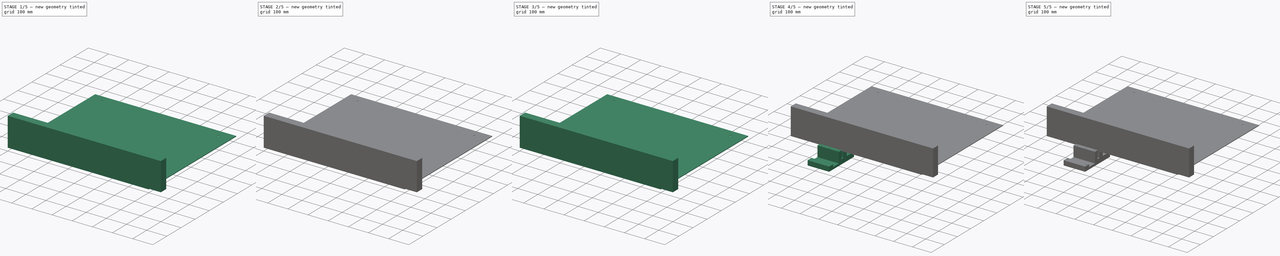
[diagram: build sequence overview — one tinted view per stage of 5, left to right]
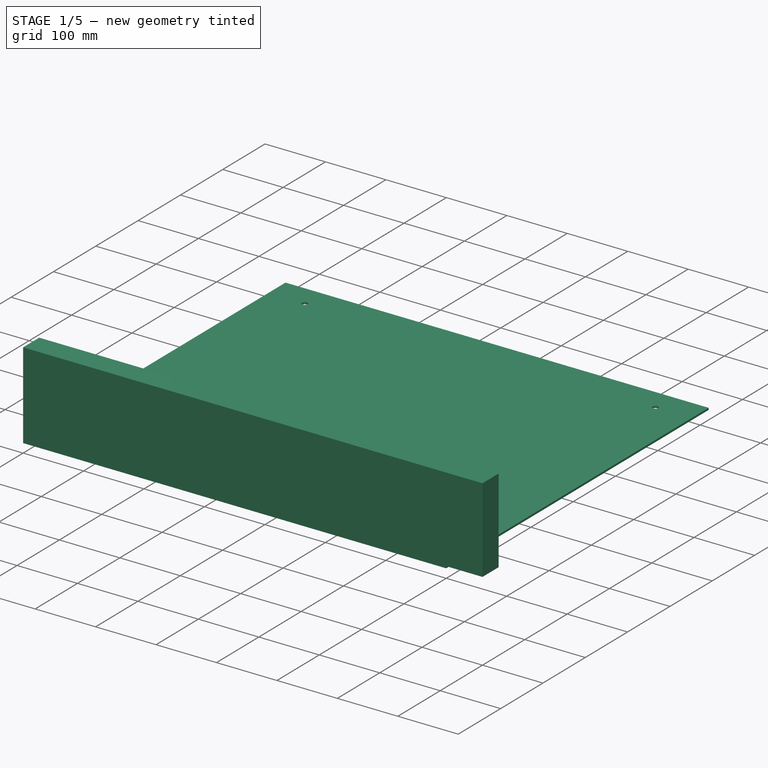
[diagram: stage 1 of 5 — iso view after this stage's code; geometry added in this stage tinted green]
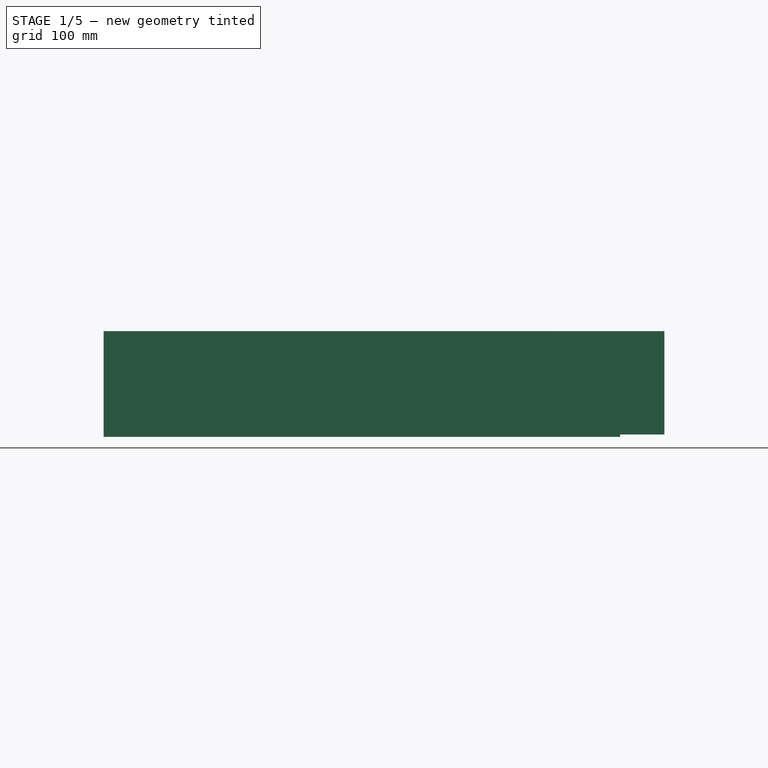
[diagram: stage 1 of 5 — front view after this stage's code; geometry added in this stage tinted green]
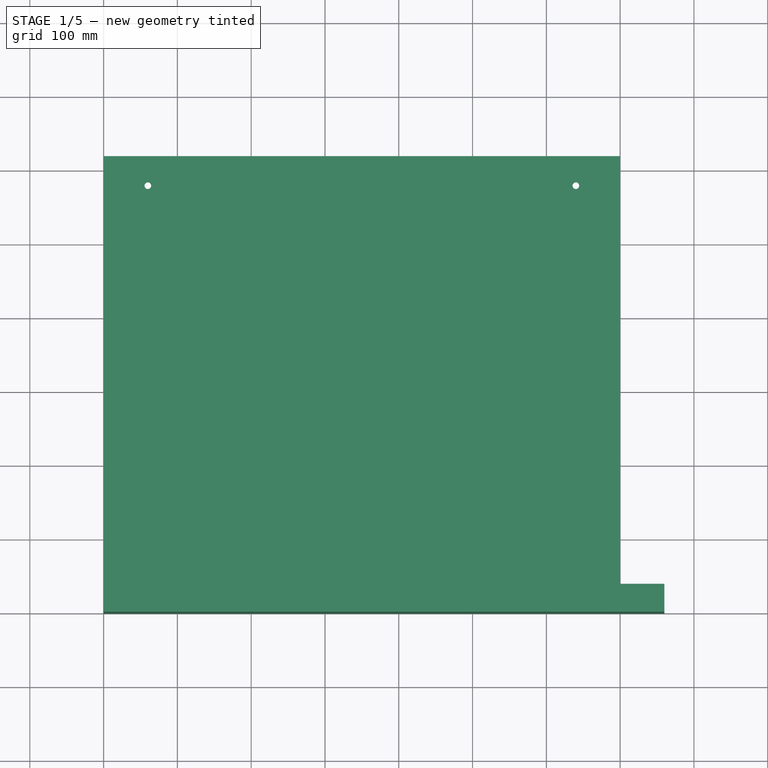
[diagram: stage 1 of 5 — top view after this stage's code; geometry added in this stage tinted green]
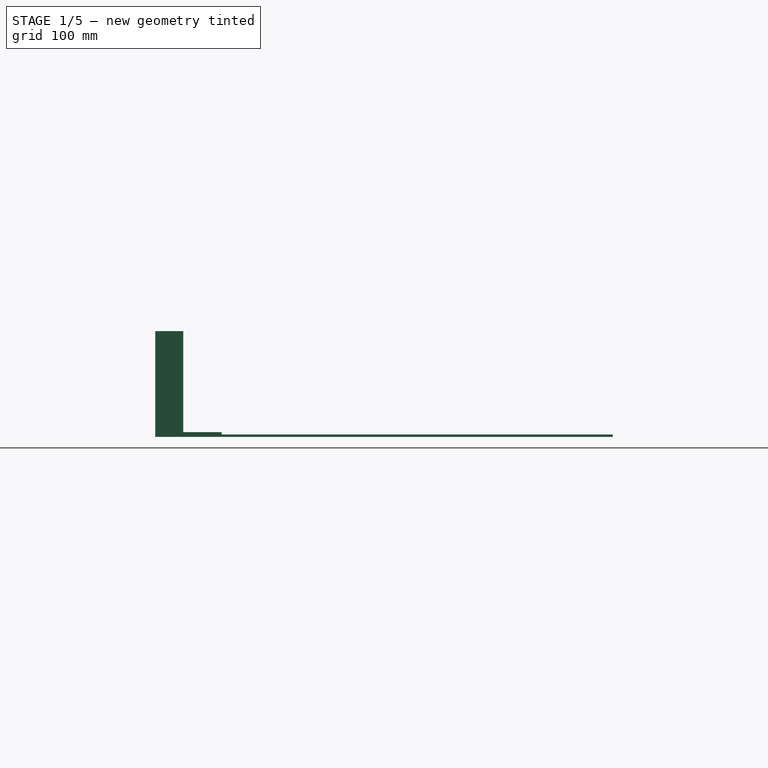
[diagram: stage 1 of 5 — right view after this stage's code; geometry added in this stage tinted green]
FCSTD DOCUMENT  (FreeCAD 1.0R39109 (Git))
Label: ControlStand
License: All rights reserved
LicenseURL: https://en.wikipedia.org/wiki/All_rights_reserved
objects: Part::Feature×104, Sketcher::SketchObject×53, PartDesign::Pad×36, PartDesign::Body×35, App::Part×31, PartDesign::Hole×15, App::DocumentObjectGroup×11, PartDesign::Pocket×1
note: 401 computed .brp shape members not serialized (recipe doc carries the construction recipe); baked Part::Feature solids carry a one-line shape summary decoded from their .brp

FEATURE [PartDesign::Body] Body033  label="2x4_286mm_004"
  AllowCompound = false
  Group = -> [Sketch073,Pad027]
  Origin = -> Origin070
  Placement = pos=(-662,738,-3) rot=(-0.57735,0.57735,-0.57735;4.18879rad)
  Tip = -> Pad027
FEATURE [Sketcher::SketchObject] Sketch074  label="TopPlate001"
  ArcFitTolerance = 1e-06
  AttachmentSupport = -> [XY_Plane071]
  FullyConstrained = false
  MakeInternals = false
  MapMode = 5
  sketch-geometry (4):
    g0: LineSegment StartX=0 StartY=0 StartZ=0 EndX=700 EndY=0 EndZ=0
    g1: LineSegment StartX=700 StartY=0 StartZ=0 EndX=700 EndY=90 EndZ=0
    g2: LineSegment StartX=700 StartY=90 StartZ=0 EndX=0 EndY=90 EndZ=0
    g3: LineSegment StartX=0 StartY=90 StartZ=0 EndX=0 EndY=0 EndZ=0
  constraints (8):
    c: Coincident(g0,g1)
    c: Coincident(g1,g2)
    c: Coincident(g2,g3)
    c: Coincident(g3,g0)
    c: Horizontal(g0)
    c: Horizontal(g2)
    c: Vertical(g1)
    c: Vertical(g3)
FEATURE [PartDesign::Pad] Pad028
  Direction = (0,0,1)
  Length = 3.175
  Length2 = 10
  Profile = -> Sketch074
  ReferenceAxis = -> Sketch074 [N_Axis]
  Refine = true
  Suppressed = false
  Type = 0
FEATURE [PartDesign::Body] Body034  label="MetalTopPlate001"
  AllowCompound = false
  Group = -> [Sketch074,Pad028,Sketch075,Hole012]
  Origin = -> Origin071
  Placement = pos=(-700,648,283) rot=(0,0,1;0rad)
  Tip = -> Hole012
FEATURE [Sketcher::SketchObject] Sketch076  label="WoodExtrusionBase018"
  ArcFitTolerance = 1e-06
  AttachmentSupport = -> [YZ_Plane072]
  FullyConstrained = true
  MakeInternals = false
  MapMode = 5
  Placement = pos=(0,0,0) rot=(0.57735,0.57735,0.57735;2.0944rad)
  sketch-geometry (4):
    g0: LineSegment StartX=0 StartY=0 StartZ=0 EndX=38 EndY=0 EndZ=0
    g1: LineSegment StartX=38 StartY=0 StartZ=0 EndX=38 EndY=90 EndZ=0
    g2: LineSegment StartX=38 StartY=90 StartZ=0 EndX=0 EndY=90 EndZ=0
    g3: LineSegment StartX=0 StartY=90 StartZ=0 EndX=0 EndY=0 EndZ=0
  constraints (11):
    c: Coincident(g0,g1)
    c: Coincident(g1,g2)
    c: Coincident(g2,g3)
    c: Coincident(g3,g0)
    c: Horizontal(g0)
    c: Horizontal(g2)
    c: Vertical(g1)
    c: Vertical(g3)
    c: Distance(g1,g3) = 38
    c: Distance(g0,g2) = 90
    c: Coincident(g0,g-1)
FEATURE [PartDesign::Pad] Pad029  label="624mmExtrusion008"
  Direction = (1,0,0)
  Length = 624
  Length2 = 10
  Placement = pos=(0,0,0) rot=(1,1,1;2.0944rad)
  Profile = -> Sketch076
  ReferenceAxis = -> Sketch076 [N_Axis]
  Refine = true
  Suppressed = false
  Type = 0
FEATURE [PartDesign::Body] Body035  label="2x4_624mm_008"
  AllowCompound = false
  Group = -> [Sketch076,Pad029]
  Origin = -> Origin072
  Placement = pos=(-662,700,-93) rot=(0,0,1;0rad)
  Tip = -> Pad029
FEATURE [Sketcher::SketchObject] Sketch077  label="WoodExtrusionBase019"
  ArcFitTolerance = 1e-06
  AttachmentSupport = -> [YZ_Plane073]
  FullyConstrained = true
  MakeInternals = false
  MapMode = 5
  Placement = pos=(0,0,0) rot=(0.57735,0.57735,0.57735;2.0944rad)
  sketch-geometry (4):
    g0: LineSegment StartX=0 StartY=0 StartZ=0 EndX=38 EndY=0 EndZ=0
    g1: LineSegment StartX=38 StartY=0 StartZ=0 EndX=38 EndY=140 EndZ=0
    g2: LineSegment StartX=38 StartY=140 StartZ=0 EndX=0 EndY=140 EndZ=0
    g3: LineSegment StartX=0 StartY=140 StartZ=0 EndX=0 EndY=0 EndZ=0
  constraints (11):
    c: Coincident(g0,g1)
    c: Coincident(g1,g2)
    c: Coincident(g2,g3)
    c: Coincident(g3,g0)
    c: Horizontal(g0)
    c: Horizontal(g2)
    c: Vertical(g1)
    c: Vertical(g3)
    c: Distance(g1,g3) = 38
    c: Distance(g0,g2) = 140
    c: Coincident(g0,g-1)
FEATURE [PartDesign::Pad] Pad030  label="760mmExtrusion006"
  Direction = (1,0,0)
  Length = 760
  Length2 = 10
  Placement = pos=(0,0,0) rot=(1,1,1;2.0944rad)
  Profile = -> Sketch077
  ReferenceAxis = -> Sketch077 [N_Axis]
  Refine = true
  Suppressed = false
  Type = 0
FEATURE [PartDesign::Body] Body036  label="2x6_760mm_001"
  AllowCompound = false
  Group = -> [Sketch077,Pad030]
  Origin = -> Origin073
  Placement = pos=(662,503,-3) rot=(-0.57735,0.57735,0.57735;2.0944rad)
  Tip = -> Pad030
FEATURE [Sketcher::SketchObject] Sketch078  label="WoodExtrusionBase020"
  ArcFitTolerance = 1e-06
  AttachmentSupport = -> [YZ_Plane074]
  FullyConstrained = true
  MakeInternals = false
  MapMode = 5
  Placement = pos=(0,0,0) rot=(0.57735,0.57735,0.57735;2.0944rad)
  sketch-geometry (4):
    g0: LineSegment StartX=0 StartY=0 StartZ=0 EndX=38 EndY=0 EndZ=0
    g1: LineSegment StartX=38 StartY=0 StartZ=0 EndX=38 EndY=140 EndZ=0
    g2: LineSegment StartX=38 StartY=140 StartZ=0 EndX=0 EndY=140 EndZ=0
    g3: LineSegment StartX=0 StartY=140 StartZ=0 EndX=0 EndY=0 EndZ=0
  constraints (11):
    c: Coincident(g0,g1)
    c: Coincident(g1,g2)
    c: Coincident(g2,g3)
    c: Coincident(g3,g0)
    c: Horizontal(g0)
    c: Horizontal(g2)
    c: Vertical(g1)
    c: Vertical(g3)
    c: Distance(g1,g3) = 38
    c: Distance(g0,g2) = 140
    c: Coincident(g0,g-1)
FEATURE [PartDesign::Pad] Pad031  label="760mmExtrusion007"
  Direction = (1,0,0)
  Length = 760
  Length2 = 10
  Placement = pos=(0,0,0) rot=(1,1,1;2.0944rad)
  Profile = -> Sketch078
  ReferenceAxis = -> Sketch078 [N_Axis]
  Refine = true
  Suppressed = false
  Type = 0
FEATURE [PartDesign::Body] Body037  label="2x6_760mm_002"
  AllowCompound = false
  Group = -> [Sketch078,Pad031]
  Origin = -> Origin074
  Placement = pos=(-38,503,-3) rot=(-0.57735,0.57735,0.57735;2.0944rad)
  Tip = -> Pad031
FEATURE [Sketcher::SketchObject] Sketch079  label="WoodExtrusionBase021"
  ArcFitTolerance = 1e-06
  AttachmentSupport = -> [YZ_Plane075]
  FullyConstrained = true
  MakeInternals = false
  MapMode = 5
  Placement = pos=(0,0,0) rot=(0.57735,0.57735,0.57735;2.0944rad)
  sketch-geometry (4):
    g0: LineSegment StartX=0 StartY=0 StartZ=0 EndX=38 EndY=0 EndZ=0
    g1: LineSegment StartX=38 StartY=0 StartZ=0 EndX=38 EndY=140 EndZ=0
    g2: LineSegment StartX=38 StartY=140 StartZ=0 EndX=0 EndY=140 EndZ=0
    g3: LineSegment StartX=0 StartY=140 StartZ=0 EndX=0 EndY=0 EndZ=0
  constraints (11):
    c: Coincident(g0,g1)
    c: Coincident(g1,g2)
    c: Coincident(g2,g3)
    c: Coincident(g3,g0)
    c: Horizontal(g0)
    c: Horizontal(g2)
    c: Vertical(g1)
    c: Vertical(g3)
    c: Distance(g1,g3) = 38
    c: Distance(g0,g2) = 140
    c: Coincident(g0,g-1)
FEATURE [PartDesign::Pad] Pad032  label="760mmExtrusion008"
  Direction = (1,0,0)
  Length = 760
  Length2 = 10
  Placement = pos=(0,0,0) rot=(1,1,1;2.0944rad)
  Profile = -> Sketch079
  ReferenceAxis = -> Sketch079 [N_Axis]
  Refine = true
  Suppressed = false
  Type = 0
FEATURE [PartDesign::Body] Body038  label="2x6_760mm_003"
  AllowCompound = false
  Group = -> [Sketch079,Pad032]
  Origin = -> Origin075
  Placement = pos=(76,503,-3) rot=(-0.57735,0.57735,0.57735;2.0944rad)
  Tip = -> Pad032
FEATURE [Sketcher::SketchObject] Sketch080  label="WoodExtrusionBase022"
  ArcFitTolerance = 1e-06
  AttachmentSupport = -> [YZ_Plane076]
  FullyConstrained = true
  MakeInternals = false
  MapMode = 5
  Placement = pos=(0,0,0) rot=(0.57735,0.57735,0.57735;2.0944rad)
  sketch-geometry (4):
    g0: LineSegment StartX=0 StartY=0 StartZ=0 EndX=38 EndY=0 EndZ=0
    g1: LineSegment StartX=38 StartY=0 StartZ=0 EndX=38 EndY=140 EndZ=0
    g2: LineSegment StartX=38 StartY=140 StartZ=0 EndX=0 EndY=140 EndZ=0
    g3: LineSegment StartX=0 StartY=140 StartZ=0 EndX=0 EndY=0 EndZ=0
  constraints (11):
    c: Coincident(g0,g1)
    c: Coincident(g1,g2)
    c: Coincident(g2,g3)
    c: Coincident(g3,g0)
    c: Horizontal(g0)
    c: Horizontal(g2)
    c: Vertical(g1)
    c: Vertical(g3)
    c: Distance(g1,g3) = 38
    c: Distance(g0,g2) = 140
    c: Coincident(g0,g-1)
FEATURE [PartDesign::Pad] Pad033  label="760mmExtrusion009"
  Direction = (1,0,0)
  Length = 760
  Length2 = 10
  Placement = pos=(0,0,0) rot=(1,1,1;2.0944rad)
  Profile = -> Sketch080
  ReferenceAxis = -> Sketch080 [N_Axis]
  Refine = true
  Suppressed = false
  Type = 0
FEATURE [PartDesign::Body] Body039  label="2x6_760mm_004"
  AllowCompound = false
  Group = -> [Sketch080,Pad033]
  Origin = -> Origin076
  Placement = pos=(-624,503,-3) rot=(-0.57735,0.57735,0.57735;2.0944rad)
  Tip = -> Pad033
FEATURE [App::DocumentObjectGroup] Group008  label="WoodStructure"
  Group = -> [Body011,Body012,Body013,Body014,Body015,Body016,Body017,Body018,Body019,Body021,Body026,Body027,Body028,Body029,Body030,Body031,Body032,Body033,Body035,Body036,Body037,Body038,Body039]
FEATURE [Sketcher::SketchObject] Sketch081  label="CenterConsoleBase004"
  ArcFitTolerance = 1e-06
  AttachmentSupport = -> [XY_Plane077]
  FullyConstrained = false
  MakeInternals = false
  MapMode = 5
  sketch-geometry (4):
    g0: LineSegment StartX=0 StartY=0 StartZ=0 EndX=700 EndY=0 EndZ=0
    g1: LineSegment StartX=700 StartY=0 StartZ=0 EndX=700 EndY=620 EndZ=0
    g2: LineSegment StartX=700 StartY=620 StartZ=0 EndX=0 EndY=620 EndZ=0
    g3: LineSegment StartX=0 StartY=620 StartZ=0 EndX=0 EndY=0 EndZ=0
  constraints (8):
    c: Coincident(g0,g1)
    c: Coincident(g1,g2)
    c: Coincident(g2,g3)
    c: Coincident(g3,g0)
    c: Horizontal(g0)
    c: Horizontal(g2)
    c: Vertical(g1)
    c: Vertical(g3)
FEATURE [PartDesign::Pad] Pad034  label="CenterConsoleBasePad004"
  Direction = (0,0,1)
  Length = 3.175
  Length2 = 10
  Profile = -> Sketch081
  ReferenceAxis = -> Sketch081 [N_Axis]
  Refine = true
  Reversed = true
  Suppressed = false
  Type = 0
FEATURE [Sketcher::SketchObject] Sketch082  label="CenterConsoleMountingHoles004"
  ArcFitTolerance = 1e-06
  AttachmentSupport = -> [XY_Plane077]
  FullyConstrained = false
  MakeInternals = false
  MapMode = 5
  sketch-geometry (4):
    g0: Circle CenterX=640 CenterY=580 CenterZ=0 NormalX=0 NormalY=0 NormalZ=1 AngleXU=0 Radius=5.65045
    g1: Circle CenterX=60 CenterY=580 CenterZ=0 NormalX=0 NormalY=0 NormalZ=1 AngleXU=0 Radius=5.25989
    g2: Circle CenterX=640 CenterY=30 CenterZ=0 NormalX=0 NormalY=0 NormalZ=1 AngleXU=0 Radius=5.82515
    g3: Circle CenterX=60 CenterY=30 CenterZ=0 NormalX=0 NormalY=0 NormalZ=1 AngleXU=0 Radius=7.38135
FEATURE [PartDesign::Hole] Hole013  label="CenterconsoleBaseHoles004"
  BaseFeature = -> Pad034
  CustomThreadClearance = 0
  Depth = 25
  DepthType = 0
  Diameter = 9
  DrillForDepth = false
  DrillPoint = 1
  DrillPointAngle = 118
  HoleCutCountersinkAngle = 90
  HoleCutCustomValues = false
  HoleCutDepth = 0
  HoleCutDiameter = 6.1
  HoleCutType = 0
  ModelThread = false
  Profile = -> Sketch082
  Refine = true
  Suppressed = false
  Tapered = false
  TaperedAngle = 90
  ThreadClass = 0
  ThreadDepth = 25
  ThreadDepthType = 0
  ThreadDirection = 0
  ThreadFit = 0
  ThreadSize = 16
  ThreadType = 1
  Threaded = false
  UseCustomThreadClearance = false
FEATURE [PartDesign::Body] Body040  label="ConsoleFootplate"
  AllowCompound = false
  Group = -> [Sketch081,Pad034,Sketch082,Hole013]
  Origin = -> Origin077
  Placement = pos=(-700,503,-143) rot=(1,0,0;4.71239rad)
  Tip = -> Hole013
FEATURE [Sketcher::SketchObject] Sketch083  label="CenterConsoleBase005"
  ArcFitTolerance = 1e-06
  AttachmentSupport = -> [XY_Plane078]
  FullyConstrained = false
  MakeInternals = false
  MapMode = 5
  sketch-geometry (4):
    g0: LineSegment StartX=0 StartY=0 StartZ=0 EndX=700 EndY=0 EndZ=0
    g1: LineSegment StartX=700 StartY=0 StartZ=0 EndX=700 EndY=620 EndZ=0
    g2: LineSegment StartX=700 StartY=620 StartZ=0 EndX=0 EndY=620 EndZ=0
    g3: LineSegment StartX=0 StartY=620 StartZ=0 EndX=0 EndY=0 EndZ=0
  constraints (8):
    c: Coincident(g0,g1)
    c: Coincident(g1,g2)
    c: Coincident(g2,g3)
    c: Coincident(g3,g0)
    c: Horizontal(g0)
    c: Horizontal(g2)
    c: Vertical(g1)
    c: Vertical(g3)
FEATURE [PartDesign::Pad] Pad035  label="CenterConsoleBasePad005"
  Direction = (0,0,1)
  Length = 3.175
  Length2 = 10
  Profile = -> Sketch083
  ReferenceAxis = -> Sketch083 [N_Axis]
  Refine = true
  Reversed = true
  Suppressed = false
  Type = 0
FEATURE [Sketcher::SketchObject] Sketch084  label="CenterConsoleMountingHoles005"
  ArcFitTolerance = 1e-06
  AttachmentSupport = -> [XY_Plane078]
  FullyConstrained = false
  MakeInternals = false
  MapMode = 5
  sketch-geometry (4):
    g0: Circle CenterX=640 CenterY=580 CenterZ=0 NormalX=0 NormalY=0 NormalZ=1 AngleXU=0 Radius=5.65045
    g1: Circle CenterX=60 CenterY=580 CenterZ=0 NormalX=0 NormalY=0 NormalZ=1 AngleXU=0 Radius=5.25989
    g2: Circle CenterX=640 CenterY=30 CenterZ=0 NormalX=0 NormalY=0 NormalZ=1 AngleXU=0 Radius=5.82515
    g3: Circle CenterX=60 CenterY=30 CenterZ=0 NormalX=0 NormalY=0 NormalZ=1 AngleXU=0 Radius=7.38135
FEATURE [PartDesign::Hole] Hole014  label="CenterconsoleBaseHoles005"
  BaseFeature = -> Pad035
  CustomThreadClearance = 0
  Depth = 25
  DepthType = 0
  Diameter = 9
  DrillForDepth = false
  DrillPoint = 1
  DrillPointAngle = 118
  HoleCutCountersinkAngle = 90
  HoleCutCustomValues = false
  HoleCutDepth = 0
  HoleCutDiameter = 6.1
  HoleCutType = 0
  ModelThread = false
  Profile = -> Sketch084
  Refine = true
  Suppressed = false
  Tapered = false
  TaperedAngle = 90
  ThreadClass = 0
  ThreadDepth = 25
  ThreadDepthType = 0
  ThreadDirection = 0
  ThreadFit = 0
  ThreadSize = 16
  ThreadType = 1
  Threaded = false
  UseCustomThreadClearance = false
FEATURE [PartDesign::Body] Body041  label="ConsoleFootplate001"
  AllowCompound = false
  Group = -> [Sketch083,Pad035,Sketch084,Hole014]
  Origin = -> Origin078
  Placement = pos=(0,503,-143) rot=(1,0,0;4.71239rad)
  Tip = -> Hole014
FEATURE [App::DocumentObjectGroup] Group010  label="SheetMetal"
  Group = -> [Body020,Body,Body007,Body034,Body022,Body023,Body024,Body025,Body040,Body041]
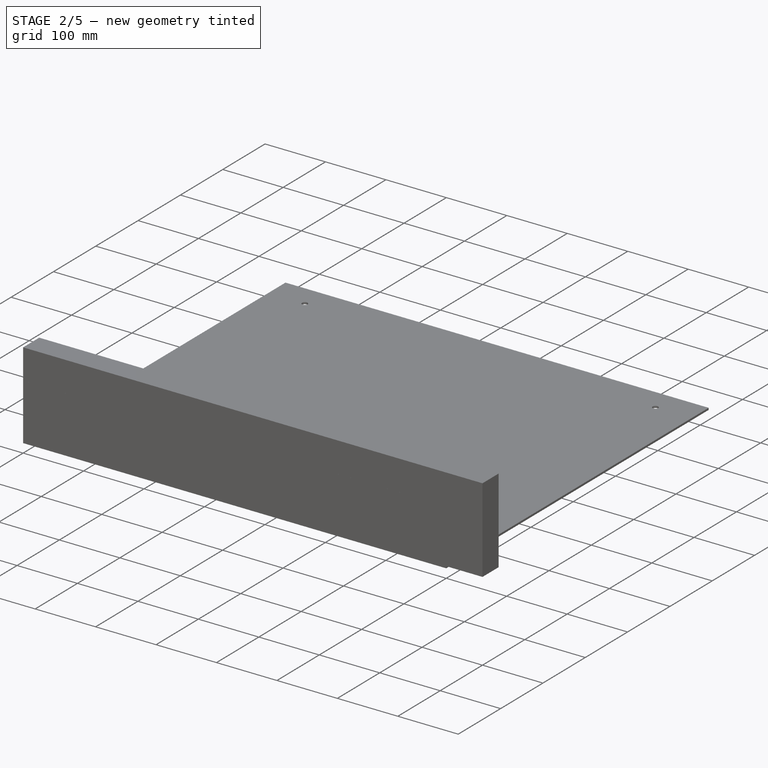
[diagram: stage 2 of 5 — iso view after this stage's code; geometry added in this stage tinted green]
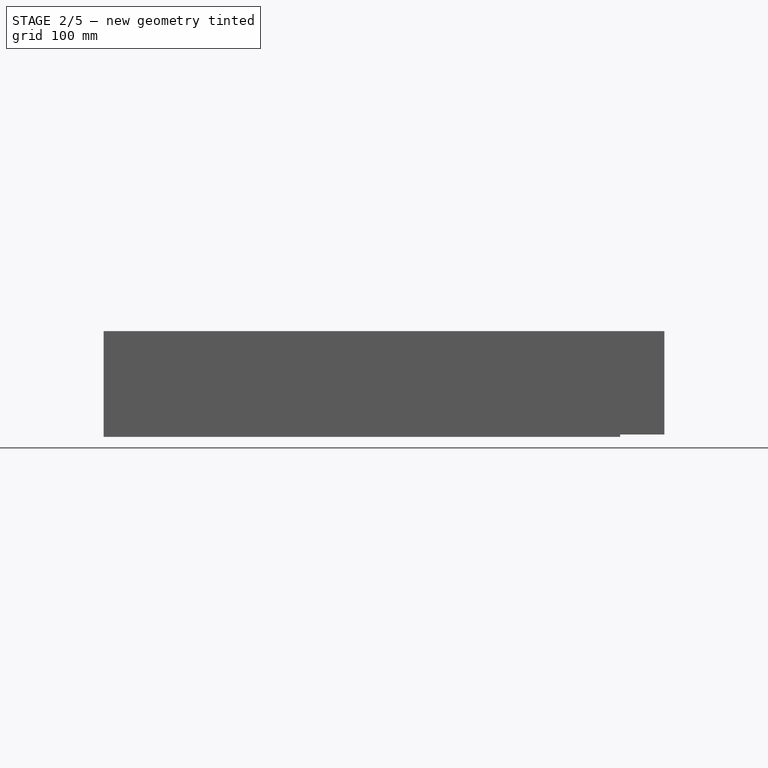
[diagram: stage 2 of 5 — front view after this stage's code; geometry added in this stage tinted green]
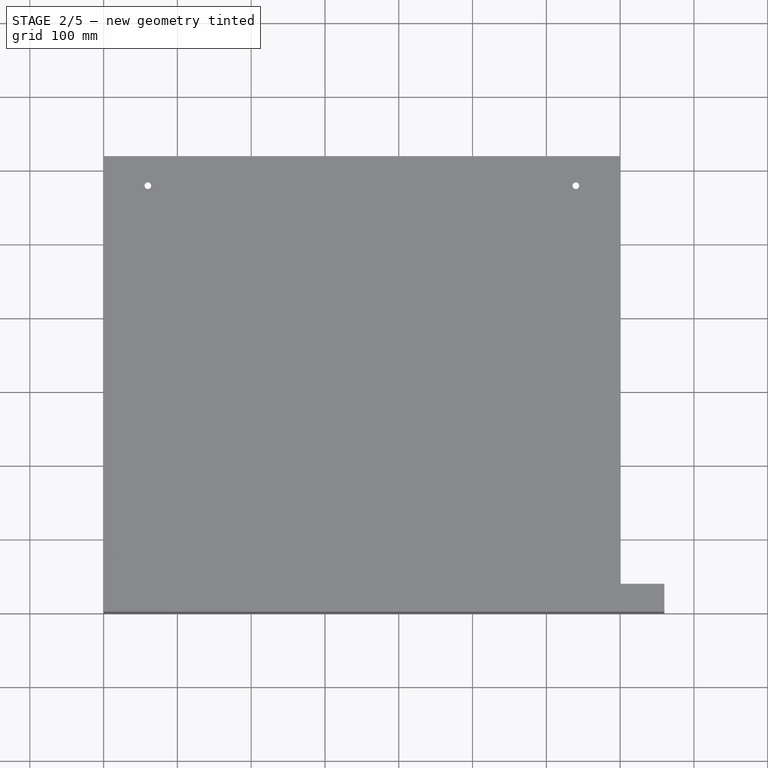
[diagram: stage 2 of 5 — top view after this stage's code; geometry added in this stage tinted green]
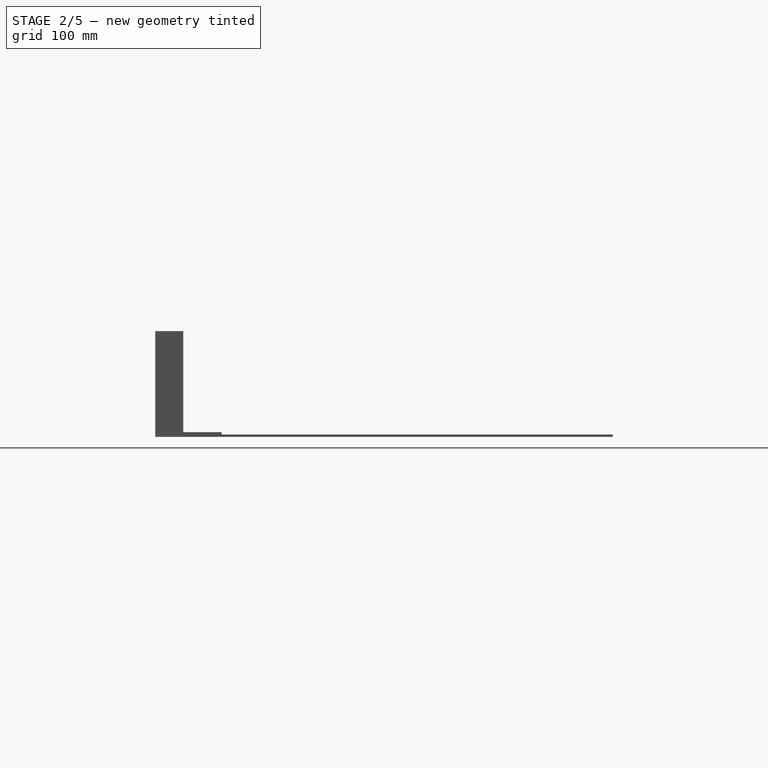
[diagram: stage 2 of 5 — right view after this stage's code; geometry added in this stage tinted green]
FEATURE [PartDesign::Body] Body024  label="ConsoleBottomPlate"
  AllowCompound = false
  Group = -> [Sketch062,Pad018,Sketch063,Hole010]
  Origin = -> Origin061
  Placement = pos=(0,-1.59e-14,-143) rot=(0,0,1;0rad)
  Tip = -> Hole010
FEATURE [Sketcher::SketchObject] Sketch064  label="CenterConsoleBase003"
  ArcFitTolerance = 1e-06
  AttachmentSupport = -> [XY_Plane062]
  FullyConstrained = false
  MakeInternals = false
  MapMode = 5
  sketch-geometry (4):
    g0: LineSegment StartX=0 StartY=0 StartZ=0 EndX=700 EndY=0 EndZ=0
    g1: LineSegment StartX=700 StartY=0 StartZ=0 EndX=700 EndY=500 EndZ=0
    g2: LineSegment StartX=700 StartY=500 StartZ=0 EndX=0 EndY=500 EndZ=0
    g3: LineSegment StartX=0 StartY=500 StartZ=0 EndX=0 EndY=0 EndZ=0
  constraints (8):
    c: Coincident(g0,g1)
    c: Coincident(g1,g2)
    c: Coincident(g2,g3)
    c: Coincident(g3,g0)
    c: Horizontal(g0)
    c: Horizontal(g2)
    c: Vertical(g1)
    c: Vertical(g3)
FEATURE [PartDesign::Pad] Pad019  label="CenterConsoleBasePad003"
  Direction = (0,0,1)
  Length = 3.175
  Length2 = 10
  Profile = -> Sketch064
  ReferenceAxis = -> Sketch064 [N_Axis]
  Refine = true
  Reversed = true
  Suppressed = false
  Type = 0
FEATURE [Sketcher::SketchObject] Sketch065  label="CenterConsoleMountingHoles003"
  ArcFitTolerance = 1e-06
  AttachmentSupport = -> [XY_Plane062]
  FullyConstrained = false
  MakeInternals = false
  MapMode = 5
  sketch-geometry (8):
    g0: Circle CenterX=20 CenterY=20 CenterZ=0 NormalX=0 NormalY=0 NormalZ=1 AngleXU=0 Radius=7.38135
    g1: Circle CenterX=680 CenterY=20 CenterZ=0 NormalX=0 NormalY=0 NormalZ=1 AngleXU=0 Radius=5.82515
    g2: Circle CenterX=620 CenterY=19.5711 CenterZ=0 NormalX=0 NormalY=0 NormalZ=1 AngleXU=0 Radius=5.82515
    g3: Circle CenterX=80 CenterY=20 CenterZ=0 NormalX=0 NormalY=0 NormalZ=1 AngleXU=0 Radius=7.38135
    g4: Circle CenterX=680 CenterY=480 CenterZ=0 NormalX=0 NormalY=0 NormalZ=1 AngleXU=0 Radius=5.65045
    g5: Circle CenterX=20 CenterY=480 CenterZ=0 NormalX=0 NormalY=0 NormalZ=1 AngleXU=0 Radius=5.25989
    g6: Circle CenterX=620 CenterY=479.571 CenterZ=0 NormalX=0 NormalY=0 NormalZ=1 AngleXU=0 Radius=5.65045
    g7: Circle CenterX=80 CenterY=480 CenterZ=0 NormalX=0 NormalY=0 NormalZ=1 AngleXU=0 Radius=5.25989
FEATURE [PartDesign::Hole] Hole011  label="CenterconsoleBaseHoles003"
  BaseFeature = -> Pad019
  CustomThreadClearance = 0
  Depth = 25
  DepthType = 0
  Diameter = 9
  DrillForDepth = false
  DrillPoint = 1
  DrillPointAngle = 118
  HoleCutCountersinkAngle = 90
  HoleCutCustomValues = false
  HoleCutDepth = 0
  HoleCutDiameter = 6.1
  HoleCutType = 0
  ModelThread = false
  Profile = -> Sketch065
  Refine = true
  Suppressed = false
  Tapered = false
  TaperedAngle = 90
  ThreadClass = 0
  ThreadDepth = 25
  ThreadDepthType = 0
  ThreadDirection = 0
  ThreadFit = 0
  ThreadSize = 16
  ThreadType = 1
  Threaded = false
  UseCustomThreadClearance = false
FEATURE [PartDesign::Body] Body025  label="ConsoleBottomPlate001"
  AllowCompound = false
  Group = -> [Sketch064,Pad019,Sketch065,Hole011]
  Origin = -> Origin062
  Placement = pos=(-700,-1.59e-14,-143) rot=(0,0,1;0rad)
  Tip = -> Hole011
FEATURE [Part::Feature] Part__Feature118  label="G25-SD160-4CS-001"
  Placement = pos=(-100,577.233,222.032) rot=(1,0,0;0.785398rad)
  shape: bbox 74.59 x 70.91 x 70.91 mm, 351 faces (baked)
FEATURE [Part::Feature] Part__Feature119  label="G25-SD160-4CS-002"
  Placement = pos=(-200,577.233,222.032) rot=(1,0,0;0.785398rad)
  shape: bbox 74.59 x 70.91 x 70.91 mm, 351 faces (baked)
FEATURE [Part::Feature] Part__Feature120  label="G25-SD160-4CS-003"
  Placement = pos=(-200,506.522,151.321) rot=(1,0,0;0.785398rad)
  shape: bbox 74.59 x 70.91 x 70.91 mm, 351 faces (baked)
FEATURE [Part::Feature] Part__Feature121  label="G25-SD160-4CS-004"
  Placement = pos=(-100,506.522,151.321) rot=(1,0,0;0.785398rad)
  shape: bbox 74.59 x 70.91 x 70.91 mm, 351 faces (baked)
FEATURE [App::DocumentObjectGroup] Group009  label="Controls"
  Group = -> [Group007,Group006,Group005,Group004,Group003,Group002,Group001,Group,GCX3131,Part__Feature120,Part__Feature119,Part__Feature118,Part__Feature121]
FEATURE [Sketcher::SketchObject] Sketch066  label="WoodExtrusionBase010"
  ArcFitTolerance = 1e-06
  AttachmentSupport = -> [YZ_Plane063]
  FullyConstrained = true
  MakeInternals = false
  MapMode = 5
  Placement = pos=(0,0,0) rot=(0.57735,0.57735,0.57735;2.0944rad)
  sketch-geometry (4):
    g0: LineSegment StartX=0 StartY=0 StartZ=0 EndX=38 EndY=0 EndZ=0
    g1: LineSegment StartX=38 StartY=0 StartZ=0 EndX=38 EndY=140 EndZ=0
    g2: LineSegment StartX=38 StartY=140 StartZ=0 EndX=0 EndY=140 EndZ=0
    g3: LineSegment StartX=0 StartY=140 StartZ=0 EndX=0 EndY=0 EndZ=0
  constraints (11):
    c: Coincident(g0,g1)
    c: Coincident(g1,g2)
    c: Coincident(g2,g3)
    c: Coincident(g3,g0)
    c: Horizontal(g0)
    c: Horizontal(g2)
    c: Vertical(g1)
    c: Vertical(g3)
    c: Distance(g1,g3) = 38
    c: Distance(g0,g2) = 140
    c: Coincident(g0,g-1)
FEATURE [PartDesign::Pad] Pad020  label="700mmExtrusion003"
  Direction = (1,0,0)
  Length = 700
  Length2 = 10
  Placement = pos=(0,0,0) rot=(1,1,1;2.0944rad)
  Profile = -> Sketch066
  ReferenceAxis = -> Sketch066 [N_Axis]
  Refine = true
  Suppressed = false
  Type = 0
FEATURE [PartDesign::Body] Body026  label="2x6_700mm_004"
  AllowCompound = false
  Group = -> [Sketch066,Pad020]
  Origin = -> Origin063
  Placement = pos=(-662,38,-143) rot=(0,0,1;1.5708rad)
  Tip = -> Pad020
FEATURE [Sketcher::SketchObject] Sketch067  label="WoodExtrusionBase011"
  ArcFitTolerance = 1e-06
  AttachmentSupport = -> [YZ_Plane064]
  FullyConstrained = true
  MakeInternals = false
  MapMode = 5
  Placement = pos=(0,0,0) rot=(0.57735,0.57735,0.57735;2.0944rad)
  sketch-geometry (4):
    g0: LineSegment StartX=0 StartY=0 StartZ=0 EndX=38 EndY=0 EndZ=0
    g1: LineSegment StartX=38 StartY=0 StartZ=0 EndX=38 EndY=140 EndZ=0
    g2: LineSegment StartX=38 StartY=140 StartZ=0 EndX=0 EndY=140 EndZ=0
    g3: LineSegment StartX=0 StartY=140 StartZ=0 EndX=0 EndY=0 EndZ=0
  constraints (11):
    c: Coincident(g0,g1)
    c: Coincident(g1,g2)
    c: Coincident(g2,g3)
    c: Coincident(g3,g0)
    c: Horizontal(g0)
    c: Horizontal(g2)
    c: Vertical(g1)
    c: Vertical(g3)
    c: Distance(g1,g3) = 38
    c: Distance(g0,g2) = 140
    c: Coincident(g0,g-1)
FEATURE [PartDesign::Pad] Pad021  label="700mmExtrusion004"
  Direction = (1,0,0)
  Length = 700
  Length2 = 10
  Placement = pos=(0,0,0) rot=(1,1,1;2.0944rad)
  Profile = -> Sketch067
  ReferenceAxis = -> Sketch067 [N_Axis]
  Refine = true
  Suppressed = false
  Type = 0
FEATURE [PartDesign::Body] Body027  label="2x6_700mm_005"
  AllowCompound = false
  Group = -> [Sketch067,Pad021]
  Origin = -> Origin064
  Placement = pos=(-700,0,-143) rot=(0,0,1;0rad)
  Tip = -> Pad021
FEATURE [Sketcher::SketchObject] Sketch068  label="WoodExtrusionBase012"
  ArcFitTolerance = 1e-06
  AttachmentSupport = -> [YZ_Plane065]
  FullyConstrained = true
  MakeInternals = false
  MapMode = 5
  Placement = pos=(0,0,0) rot=(0.57735,0.57735,0.57735;2.0944rad)
  sketch-geometry (4):
    g0: LineSegment StartX=0 StartY=0 StartZ=0 EndX=38 EndY=0 EndZ=0
    g1: LineSegment StartX=38 StartY=0 StartZ=0 EndX=38 EndY=140 EndZ=0
    g2: LineSegment StartX=38 StartY=140 StartZ=0 EndX=0 EndY=140 EndZ=0
    g3: LineSegment StartX=0 StartY=140 StartZ=0 EndX=0 EndY=0 EndZ=0
  constraints (11):
    c: Coincident(g0,g1)
    c: Coincident(g1,g2)
    c: Coincident(g2,g3)
    c: Coincident(g3,g0)
    c: Horizontal(g0)
    c: Horizontal(g2)
    c: Vertical(g1)
    c: Vertical(g3)
    c: Distance(g1,g3) = 38
    c: Distance(g0,g2) = 140
    c: Coincident(g0,g-1)
FEATURE [PartDesign::Pad] Pad022  label="700mmExtrusion005"
  Direction = (1,0,0)
  Length = 700
  Length2 = 10
  Placement = pos=(0,0,0) rot=(1,1,1;2.0944rad)
  Profile = -> Sketch068
  ReferenceAxis = -> Sketch068 [N_Axis]
  Refine = true
  Suppressed = false
  Type = 0
FEATURE [PartDesign::Body] Body028  label="2x6_700mm_006"
  AllowCompound = false
  Group = -> [Sketch068,Pad022]
  Origin = -> Origin065
  Placement = pos=(0,38,-143) rot=(0,0,1;1.5708rad)
  Tip = -> Pad022
FEATURE [Sketcher::SketchObject] Sketch069  label="WoodExtrusionBase013"
  ArcFitTolerance = 1e-06
  AttachmentSupport = -> [YZ_Plane066]
  FullyConstrained = true
  MakeInternals = false
  MapMode = 5
  Placement = pos=(0,0,0) rot=(0.57735,0.57735,0.57735;2.0944rad)
  sketch-geometry (4):
    g0: LineSegment StartX=0 StartY=0 StartZ=0 EndX=38 EndY=0 EndZ=0
    g1: LineSegment StartX=38 StartY=0 StartZ=0 EndX=38 EndY=90 EndZ=0
    g2: LineSegment StartX=38 StartY=90 StartZ=0 EndX=0 EndY=90 EndZ=0
    g3: LineSegment StartX=0 StartY=90 StartZ=0 EndX=0 EndY=0 EndZ=0
  constraints (11):
    c: Coincident(g0,g1)
    c: Coincident(g1,g2)
    c: Coincident(g2,g3)
    c: Coincident(g3,g0)
    c: Horizontal(g0)
    c: Horizontal(g2)
    c: Vertical(g1)
    c: Vertical(g3)
    c: Distance(g1,g3) = 38
    c: Distance(g0,g2) = 90
    c: Coincident(g0,g-1)
FEATURE [PartDesign::Pad] Pad023  label="624mmExtrusion005"
  Direction = (1,0,0)
  Length = 624
  Length2 = 10
  Placement = pos=(0,0,0) rot=(1,1,1;2.0944rad)
  Profile = -> Sketch069
  ReferenceAxis = -> Sketch069 [N_Axis]
  Refine = true
  Suppressed = false
  Type = 0
FEATURE [PartDesign::Body] Body029  label="2x4_624mm_005"
  AllowCompound = false
  Group = -> [Sketch069,Pad023]
  Origin = -> Origin066
  Placement = pos=(-662,322,-93) rot=(0,0,1;0rad)
  Tip = -> Pad023
FEATURE [Sketcher::SketchObject] Sketch070  label="WoodExtrusionBase014"
  ArcFitTolerance = 1e-06
  AttachmentSupport = -> [YZ_Plane067]
  FullyConstrained = true
  MakeInternals = false
  MapMode = 5
  Placement = pos=(0,0,0) rot=(0.57735,0.57735,0.57735;2.0944rad)
  sketch-geometry (4):
    g0: LineSegment StartX=0 StartY=0 StartZ=0 EndX=38 EndY=0 EndZ=0
    g1: LineSegment StartX=38 StartY=0 StartZ=0 EndX=38 EndY=90 EndZ=0
    g2: LineSegment StartX=38 StartY=90 StartZ=0 EndX=0 EndY=90 EndZ=0
    g3: LineSegment StartX=0 StartY=90 StartZ=0 EndX=0 EndY=0 EndZ=0
  constraints (11):
    c: Coincident(g0,g1)
    c: Coincident(g1,g2)
    c: Coincident(g2,g3)
    c: Coincident(g3,g0)
    c: Horizontal(g0)
    c: Horizontal(g2)
    c: Vertical(g1)
    c: Vertical(g3)
    c: Distance(g1,g3) = 38
    c: Distance(g0,g2) = 90
    c: Coincident(g0,g-1)
FEATURE [PartDesign::Pad] Pad024  label="624mmExtrusion006"
  Direction = (1,0,0)
  Length = 624
  Length2 = 10
  Placement = pos=(0,0,0) rot=(1,1,1;2.0944rad)
  Profile = -> Sketch070
  ReferenceAxis = -> Sketch070 [N_Axis]
  Refine = true
  Suppressed = false
  Type = 0
FEATURE [PartDesign::Body] Body030  label="2x4_624mm_006"
  AllowCompound = false
  Group = -> [Sketch070,Pad024]
  Origin = -> Origin067
  Placement = pos=(-662,394.021,24.6777) rot=(-1,0,0;2.35619rad)
  Tip = -> Pad024
FEATURE [Sketcher::SketchObject] Sketch071  label="WoodExtrusionBase015"
  ArcFitTolerance = 1e-06
  AttachmentSupport = -> [YZ_Plane068]
  FullyConstrained = true
  MakeInternals = false
  MapMode = 5
  Placement = pos=(0,0,0) rot=(0.57735,0.57735,0.57735;2.0944rad)
  sketch-geometry (4):
    g0: LineSegment StartX=0 StartY=0 StartZ=0 EndX=38 EndY=0 EndZ=0
    g1: LineSegment StartX=38 StartY=0 StartZ=0 EndX=38 EndY=90 EndZ=0
    g2: LineSegment StartX=38 StartY=90 StartZ=0 EndX=0 EndY=90 EndZ=0
    g3: LineSegment StartX=0 StartY=90 StartZ=0 EndX=0 EndY=0 EndZ=0
  constraints (11):
    c: Coincident(g0,g1)
    c: Coincident(g1,g2)
    c: Coincident(g2,g3)
    c: Coincident(g3,g0)
    c: Horizontal(g0)
    c: Horizontal(g2)
    c: Vertical(g1)
    c: Vertical(g3)
    c: Distance(g1,g3) = 38
    c: Distance(g0,g2) = 90
    c: Coincident(g0,g-1)
FEATURE [PartDesign::Pad] Pad025  label="624mmExtrusion007"
  Direction = (1,0,0)
  Length = 624
  Length2 = 10
  Placement = pos=(0,0,0) rot=(1,1,1;2.0944rad)
  Profile = -> Sketch071
  ReferenceAxis = -> Sketch071 [N_Axis]
  Refine = true
  Suppressed = false
  Type = 0
FEATURE [PartDesign::Body] Body031  label="2x4_624mm_007"
  AllowCompound = false
  Group = -> [Sketch071,Pad025]
  Origin = -> Origin068
  Placement = pos=(-662,649.993,280.65) rot=(-1,0,0;2.35619rad)
  Tip = -> Pad025
FEATURE [Sketcher::SketchObject] Sketch072  label="WoodExtrusionBase016"
  ArcFitTolerance = 1e-06
  AttachmentSupport = -> [YZ_Plane069]
  FullyConstrained = true
  MakeInternals = false
  MapMode = 5
  Placement = pos=(0,0,0) rot=(0.57735,0.57735,0.57735;2.0944rad)
  sketch-geometry (4):
    g0: LineSegment StartX=0 StartY=0 StartZ=0 EndX=38 EndY=0 EndZ=0
    g1: LineSegment StartX=38 StartY=0 StartZ=0 EndX=38 EndY=90 EndZ=0
    g2: LineSegment StartX=38 StartY=90 StartZ=0 EndX=0 EndY=90 EndZ=0
    g3: LineSegment StartX=0 StartY=90 StartZ=0 EndX=0 EndY=0 EndZ=0
  constraints (11):
    c: Coincident(g0,g1)
    c: Coincident(g1,g2)
    c: Coincident(g2,g3)
    c: Coincident(g3,g0)
    c: Horizontal(g0)
    c: Horizontal(g2)
    c: Vertical(g1)
    c: Vertical(g3)
    c: Distance(g1,g3) = 38
    c: Distance(g0,g2) = 90
    c: Coincident(g0,g-1)
FEATURE [PartDesign::Pad] Pad026  label="286mmExtrusion006"
  Direction = (1,0,0)
  Length = 286
  Length2 = 10
  Placement = pos=(0,0,0) rot=(1,1,1;2.0944rad)
  Profile = -> Sketch072
  ReferenceAxis = -> Sketch072 [N_Axis]
  Refine = true
  Suppressed = false
  Type = 0
FEATURE [PartDesign::Body] Body032  label="2x4_286mm_003"
  AllowCompound = false
  Group = -> [Sketch072,Pad026]
  Origin = -> Origin069
  Placement = pos=(1.137e-13,738,-3) rot=(-0.57735,0.57735,-0.57735;4.18879rad)
  Tip = -> Pad026
FEATURE [Sketcher::SketchObject] Sketch073  label="WoodExtrusionBase017"
  ArcFitTolerance = 1e-06
  AttachmentSupport = -> [YZ_Plane070]
  FullyConstrained = true
  MakeInternals = false
  MapMode = 5
  Placement = pos=(0,0,0) rot=(0.57735,0.57735,0.57735;2.0944rad)
  sketch-geometry (4):
    g0: LineSegment StartX=0 StartY=0 StartZ=0 EndX=38 EndY=0 EndZ=0
    g1: LineSegment StartX=38 StartY=0 StartZ=0 EndX=38 EndY=90 EndZ=0
    g2: LineSegment StartX=38 StartY=90 StartZ=0 EndX=0 EndY=90 EndZ=0
    g3: LineSegment StartX=0 StartY=90 StartZ=0 EndX=0 EndY=0 EndZ=0
  constraints (11):
    c: Coincident(g0,g1)
    c: Coincident(g1,g2)
    c: Coincident(g2,g3)
    c: Coincident(g3,g0)
    c: Horizontal(g0)
    c: Horizontal(g2)
    c: Vertical(g1)
    c: Vertical(g3)
    c: Distance(g1,g3) = 38
    c: Distance(g0,g2) = 90
    c: Coincident(g0,g-1)
FEATURE [PartDesign::Pad] Pad027  label="286mmExtrusion007"
  Direction = (1,0,0)
  Length = 286
  Length2 = 10
  Placement = pos=(0,0,0) rot=(1,1,1;2.0944rad)
  Profile = -> Sketch073
  ReferenceAxis = -> Sketch073 [N_Axis]
  Refine = true
  Suppressed = false
  Type = 0
FEATURE [Sketcher::SketchObject] Sketch075
  ArcFitTolerance = 1e-06
  AttachmentSupport = -> [XY_Plane071]
  FullyConstrained = false
  MakeInternals = false
  MapMode = 5
  sketch-geometry (4):
    g0: Circle CenterX=20 CenterY=70 CenterZ=0 NormalX=0 NormalY=0 NormalZ=1 AngleXU=0 Radius=6.86843
    g1: Circle CenterX=20 CenterY=20 CenterZ=0 NormalX=0 NormalY=0 NormalZ=1 AngleXU=0 Radius=7.98328
    g2: Circle CenterX=680 CenterY=70 CenterZ=0 NormalX=0 NormalY=0 NormalZ=1 AngleXU=0 Radius=6.93048
    g3: Circle CenterX=680 CenterY=20 CenterZ=0 NormalX=0 NormalY=0 NormalZ=1 AngleXU=0 Radius=6.95072
FEATURE [PartDesign::Hole] Hole012
  BaseFeature = -> Pad028
  CustomThreadClearance = 0
  Depth = 25
  DepthType = 0
  Diameter = 9
  DrillForDepth = false
  DrillPoint = 1
  DrillPointAngle = 118
  HoleCutCountersinkAngle = 90
  HoleCutCustomValues = false
  HoleCutDepth = 0
  HoleCutDiameter = 6.1
  HoleCutType = 0
  ModelThread = false
  Profile = -> Sketch075
  Refine = true
  Reversed = true
  Suppressed = false
  Tapered = false
  TaperedAngle = 90
  ThreadClass = 0
  ThreadDepth = 25
  ThreadDepthType = 0
  ThreadDirection = 0
  ThreadFit = 0
  ThreadSize = 16
  ThreadType = 1
  Threaded = false
  UseCustomThreadClearance = false
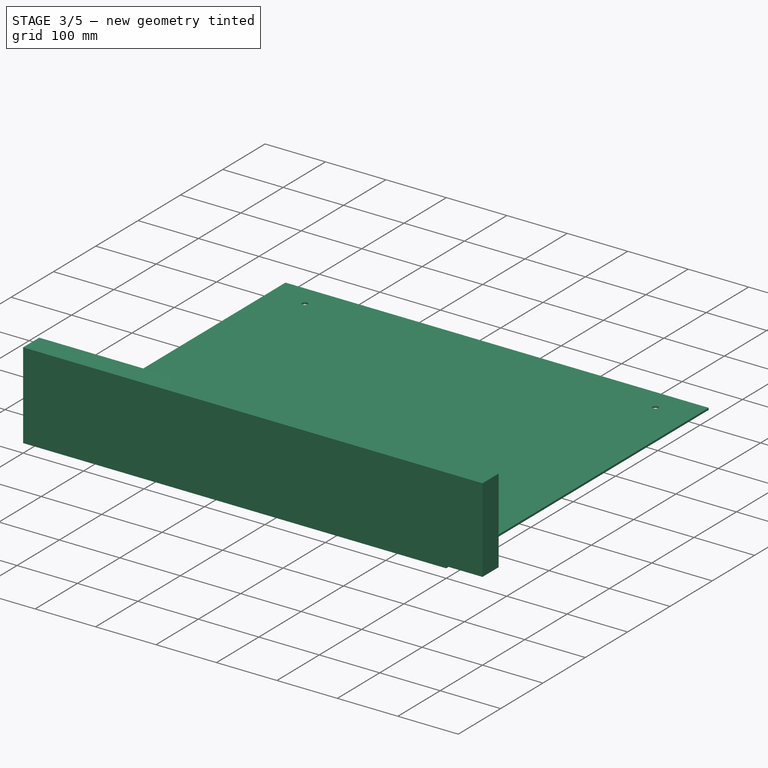
[diagram: stage 3 of 5 — iso view after this stage's code; geometry added in this stage tinted green]
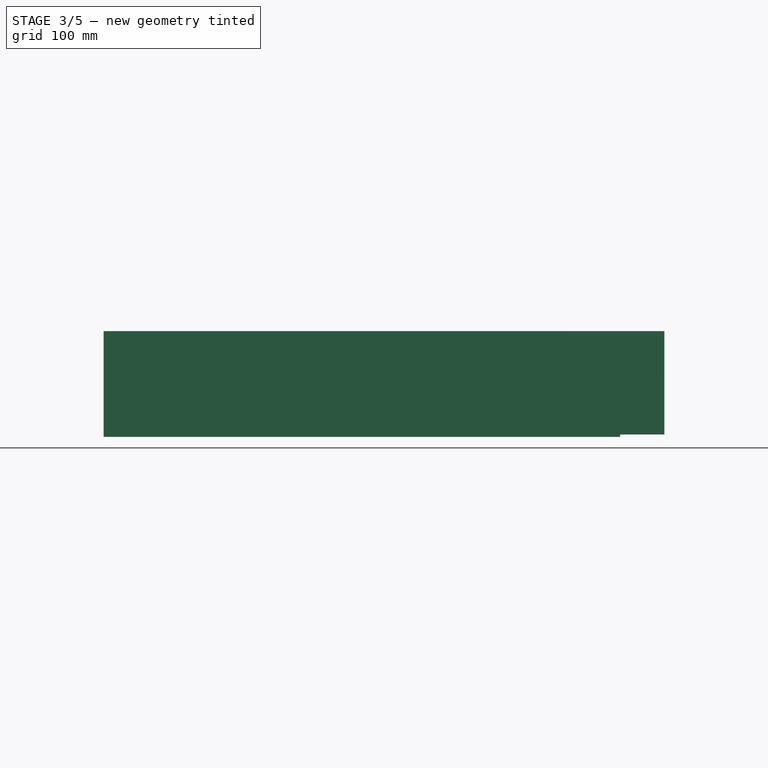
[diagram: stage 3 of 5 — front view after this stage's code; geometry added in this stage tinted green]
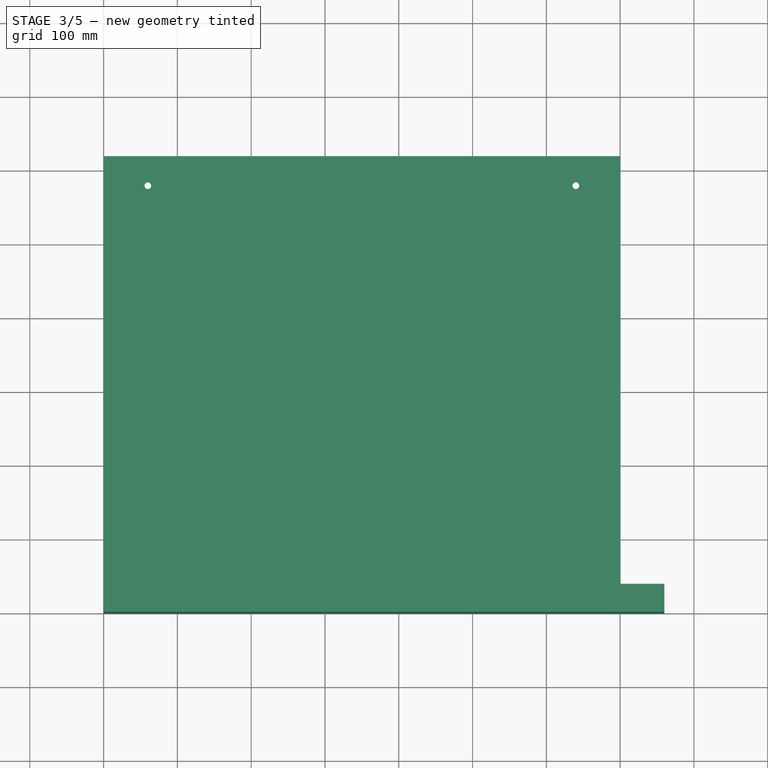
[diagram: stage 3 of 5 — top view after this stage's code; geometry added in this stage tinted green]
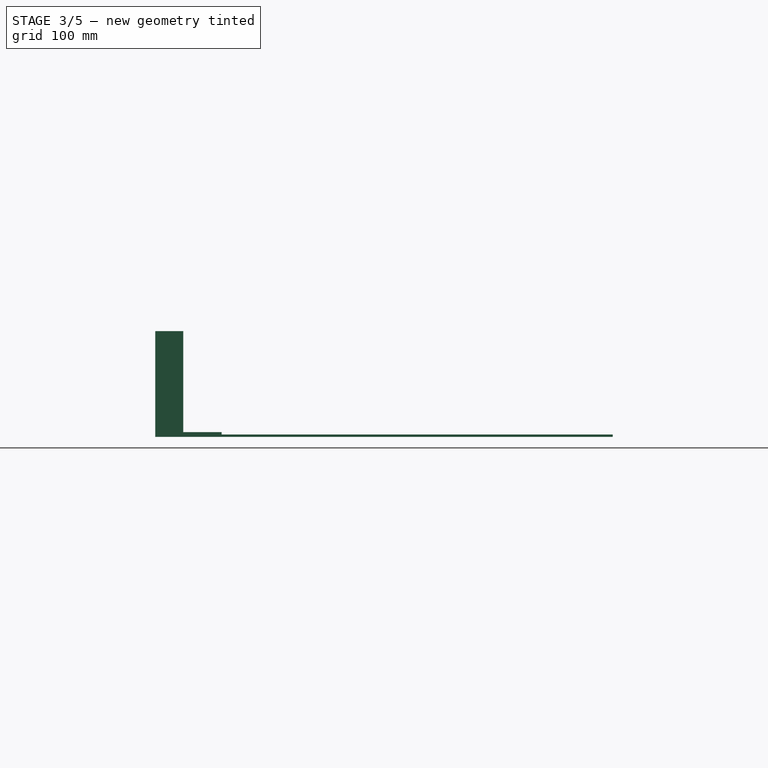
[diagram: stage 3 of 5 — right view after this stage's code; geometry added in this stage tinted green]
FEATURE [PartDesign::Body] Body007  label="DeskSheetMetal"
  AllowCompound = false
  Group = -> [Sketch033,Pad,Sketch,Hole]
  Origin = -> Origin007
  Tip = -> Hole
FEATURE [Sketcher::SketchObject] Sketch034  label="AngledBackSheetmetal"
  ArcFitTolerance = 1e-06
  AttachmentSupport = -> [XY_Plane023]
  FullyConstrained = false
  MakeInternals = false
  MapMode = 5
  sketch-geometry (14):
    g0: LineSegment StartX=0 StartY=0 StartZ=0 EndX=700 EndY=0 EndZ=0
    g1: LineSegment StartX=700 StartY=0 StartZ=0 EndX=700 EndY=400 EndZ=0
    g2: LineSegment StartX=700 StartY=400 StartZ=0 EndX=0 EndY=400 EndZ=0
    g3: LineSegment StartX=0 StartY=400 StartZ=0 EndX=0 EndY=0 EndZ=0
    g4: LineSegment StartX=617.5 StartY=67.5 StartZ=0 EndX=617.5 EndY=325 EndZ=0
    g5: LineSegment StartX=617.5 StartY=325 StartZ=0 EndX=182.5 EndY=325 EndZ=0
    g6: LineSegment StartX=182.5 StartY=325 StartZ=0 EndX=182.5 EndY=67.5 EndZ=0
    g7: LineSegment StartX=182.5 StartY=67.5 StartZ=0 EndX=617.5 EndY=67.5 EndZ=0
    g8: Circle CenterX=120 CenterY=230 CenterZ=0 NormalX=0 NormalY=0 NormalZ=1 AngleXU=0 Radius=11.5
    g9: Circle CenterX=100 CenterY=330 CenterZ=0 NormalX=0 NormalY=0 NormalZ=1 AngleXU=0 Radius=11.5
    g10: Circle CenterX=120 CenterY=130 CenterZ=0 NormalX=0 NormalY=0 NormalZ=1 AngleXU=0 Radius=11.5
    g11: Circle CenterX=70 CenterY=230 CenterZ=0 NormalX=0 NormalY=0 NormalZ=1 AngleXU=0 Radius=11.5
    g12: Circle CenterX=490 CenterY=50 CenterZ=0 NormalX=0 NormalY=0 NormalZ=1 AngleXU=0 Radius=10
    g13: Circle CenterX=70 CenterY=130 CenterZ=0 NormalX=0 NormalY=0 NormalZ=1 AngleXU=0 Radius=11.5
  constraints (21):
    c: Coincident(g0,g1)
    c: Coincident(g1,g2)
    c: Coincident(g2,g3)
    c: Coincident(g3,g0)
    c: Horizontal(g0)
    c: Horizontal(g2)
    c: Vertical(g1)
    c: Vertical(g3)
    c: Coincident(g4,g5)
    c: Coincident(g5,g6)
    c: Coincident(g6,g7)
    c: Coincident(g7,g4)
    c: Vertical(g4)
    c: Vertical(g6)
    c: Horizontal(g5)
    c: Horizontal(g7)
    c: Diameter(g8) = 23
    c: Diameter(g9) = 23
    c: Diameter(g10) = 23
    c: Diameter(g11) = 23
    c: Diameter(g13) = 23
FEATURE [Part::Feature] Part__Feature059  label="DELL- E1916H monitor"
  Placement = pos=(400,526.17,116.673) rot=(-1,0,0;5.49779rad)
  shape: bbox 447 x 223.4 x 223.5 mm, 88 faces (baked)
FEATURE [Part::Feature] Part__Feature060  label="ecx1052"
  Placement = pos=(0,0,0) rot=(-1,0,0;1.5708rad)
  shape: bbox 29.91 x 11.68 x 40 mm, 191 faces (baked)
FEATURE [Part::Feature] Part__Feature061  label="ecx1053"
  Placement = pos=(0,0,0) rot=(-1,0,0;1.5708rad)
  shape: bbox 6.155 x 21.2 x 8.126 mm, 22 faces (baked)
FEATURE [Part::Feature] Part__Feature062  label="ecx1054"
  Placement = pos=(0,0,0) rot=(-1,0,0;1.5708rad)
  shape: bbox 6.155 x 21.2 x 8.126 mm, 22 faces (baked)
FEATURE [Part::Feature] Part__Feature063  label="ecx1055"
  Placement = pos=(-8.35367,-11.05,0) rot=(0,0.707107,0.707107;3.14159rad)
  shape: bbox 14.7 x 32 x 35.54 mm, 93 faces (baked)
FEATURE [Part::Feature] Part__Feature064  label="GCX1320 OPERATOR004"
  Placement = pos=(0,-4.65,0) rot=(0,0,1;0rad)
  shape: bbox 32.31 x 27.2 x 32.31 mm, 49 faces (baked)
FEATURE [Part::Feature] Part__Feature065  label="GCX1320 OPERATOR005"
  Placement = pos=(0,-4.65,0) rot=(0,0,1;0rad)
  shape: bbox 25.5 x 26.3 x 28.7 mm, 19 faces (baked)
FEATURE [App::Part] GCX1320_OPERATOR001  label="GCX1320 OPERATOR003"
  Group = -> [Part__Feature064,Part__Feature065]
  Origin = -> Origin025
FEATURE [Part::Feature] Part__Feature066  label="ecx1056"
  Placement = pos=(8.35367,-11.05,2.71e-14) rot=(-1,0,0;1.5708rad)
  shape: bbox 14.7 x 32 x 35.54 mm, 93 faces (baked)
FEATURE [Part::Feature] Part__Feature067  label="ecx1057"
  Placement = pos=(-8.35367,-37.05,9e-16) rot=(0,0.707107,0.707107;3.14159rad)
  shape: bbox 14.7 x 32 x 35.54 mm, 93 faces (baked)
FEATURE [Part::Feature] Part__Feature068  label="ecx1058"
  Placement = pos=(8.35367,-37.05,2.67e-14) rot=(-1,0,0;1.5708rad)
  shape: bbox 14.7 x 32 x 35.54 mm, 93 faces (baked)
FEATURE [App::Part] ecx1031
  Group = -> [Part__Feature060,Part__Feature061,Part__Feature062]
  Origin = -> Origin024
FEATURE [App::Part] GCX1320_023  label="GCX1320-22-01"
  Group = -> [ecx1031,Part__Feature063,GCX1320_OPERATOR001,Part__Feature066,Part__Feature067,Part__Feature068]
  Origin = -> Origin026
  Placement = pos=(70,530.707,159.707) rot=(1,0,0;2.35619rad)
FEATURE [Part::Feature] Part__Feature078  label="ecx1066"
  Placement = pos=(0,0,0) rot=(-1,0,0;1.5708rad)
  shape: bbox 29.91 x 11.68 x 40 mm, 191 faces (baked)
FEATURE [Part::Feature] Part__Feature079  label="ecx1067"
  Placement = pos=(0,0,0) rot=(-1,0,0;1.5708rad)
  shape: bbox 6.155 x 21.2 x 8.126 mm, 22 faces (baked)
FEATURE [Part::Feature] Part__Feature080  label="ecx1068"
  Placement = pos=(0,0,0) rot=(-1,0,0;1.5708rad)
  shape: bbox 6.155 x 21.2 x 8.126 mm, 22 faces (baked)
FEATURE [App::Part] ecx1033
  Group = -> [Part__Feature078,Part__Feature079,Part__Feature080]
  Origin = -> Origin030
FEATURE [Part::Feature] Part__Feature081  label="GCX1233L OPERATOR"
  Placement = pos=(0,-4.65,0) rot=(0,0,1;0rad)
  shape: bbox 27.74 x 18.75 x 27.74 mm, 44 faces (baked)
FEATURE [Part::Feature] Part__Feature082  label="GCX1233L OPERATOR001"
  Placement = pos=(0,-4.65,0) rot=(0,0,1;0rad)
  shape: bbox 23.41 x 7 x 23.41 mm, 6 faces (baked)
FEATURE [Part::Feature] Part__Feature083  label="GCX1233L OPERATOR002"
  Placement = pos=(0,-4.65,0) rot=(0,0,1;0rad)
  shape: bbox 31.71 x 13.81 x 31.71 mm, 12 faces (baked)
FEATURE [App::Part] GCX1233L_OPERATOR  label="GCX1233L OPERATOR003"
  Group = -> [Part__Feature081,Part__Feature082,Part__Feature083]
  Origin = -> Origin031
FEATURE [Part::Feature] Part__Feature084  label="ECX1051"
  Placement = pos=(3e-16,-21.55,-2e-16) rot=(0,-1,0;1.5708rad)
  shape: bbox 29.6 x 39 x 31.6 mm, 42 faces (baked)
FEATURE [App::Part] GCX1233_24L  label="GCX1233-24L"
  Group = -> [ecx1033,GCX1233L_OPERATOR,Part__Feature084]
  Origin = -> Origin032
  Placement = pos=(100,600.567,229.052) rot=(1,0,0;2.35619rad)
FEATURE [App::DocumentObjectGroup] Group006  label="FaultIndicator"
  Group = -> [GCX1233_24L]
FEATURE [Part::Feature] Part__Feature094  label="ecx1076"
  Placement = pos=(0,0,0) rot=(-1,0,0;1.5708rad)
  shape: bbox 29.91 x 11.68 x 40 mm, 191 faces (baked)
FEATURE [Part::Feature] Part__Feature095  label="ecx1077"
  Placement = pos=(0,0,0) rot=(-1,0,0;1.5708rad)
  shape: bbox 6.155 x 21.2 x 8.126 mm, 22 faces (baked)
FEATURE [Part::Feature] Part__Feature096  label="ecx1078"
  Placement = pos=(0,0,0) rot=(-1,0,0;1.5708rad)
  shape: bbox 6.155 x 21.2 x 8.126 mm, 22 faces (baked)
FEATURE [Part::Feature] Part__Feature097  label="ecx1079"
  Placement = pos=(-8.35367,-11.05,0) rot=(0,0.707107,0.707107;3.14159rad)
  shape: bbox 14.7 x 32 x 35.54 mm, 93 faces (baked)
FEATURE [Part::Feature] Part__Feature098  label="GCX1320 OPERATOR013"
  Placement = pos=(0,-4.65,0) rot=(0,0,1;0rad)
  shape: bbox 32.31 x 27.2 x 32.31 mm, 49 faces (baked)
FEATURE [Part::Feature] Part__Feature099  label="GCX1320 OPERATOR014"
  Placement = pos=(0,-4.65,0) rot=(0,0,1;0rad)
  shape: bbox 25.5 x 26.3 x 28.7 mm, 19 faces (baked)
FEATURE [App::Part] GCX1320_OPERATOR004  label="GCX1320 OPERATOR012"
  Group = -> [Part__Feature098,Part__Feature099]
  Origin = -> Origin037
FEATURE [Part::Feature] Part__Feature100  label="ecx1080"
  Placement = pos=(8.35367,-11.05,2.71e-14) rot=(-1,0,0;1.5708rad)
  shape: bbox 14.7 x 32 x 35.54 mm, 93 faces (baked)
FEATURE [Part::Feature] Part__Feature101  label="ecx1081"
  Placement = pos=(-8.35367,-37.05,9e-16) rot=(0,0.707107,0.707107;3.14159rad)
  shape: bbox 14.7 x 32 x 35.54 mm, 93 faces (baked)
FEATURE [Part::Feature] Part__Feature102  label="ecx1082"
  Placement = pos=(8.35367,-37.05,2.67e-14) rot=(-1,0,0;1.5708rad)
  shape: bbox 14.7 x 32 x 35.54 mm, 93 faces (baked)
FEATURE [App::Part] ecx1035
  Group = -> [Part__Feature094,Part__Feature095,Part__Feature096]
  Origin = -> Origin036
FEATURE [App::Part] GCX1320_026  label="GCX1320-22-004"
  Group = -> [ecx1035,Part__Feature097,GCX1320_OPERATOR004,Part__Feature100,Part__Feature101,Part__Feature102]
  Origin = -> Origin038
  Placement = pos=(120,530.707,159.707) rot=(1,0,0;2.35619rad)
FEATURE [App::DocumentObjectGroup] Group005  label="HeadlightControls"
  Group = -> [GCX1320_023,GCX1320_026]
FEATURE [Part::Feature] Part__Feature103  label="ecx1083"
  Placement = pos=(0,0,0) rot=(-1,0,0;1.5708rad)
  shape: bbox 29.91 x 11.68 x 40 mm, 191 faces (baked)
FEATURE [Part::Feature] Part__Feature104  label="ecx1084"
  Placement = pos=(0,0,0) rot=(-1,0,0;1.5708rad)
  shape: bbox 6.155 x 21.2 x 8.126 mm, 22 faces (baked)
FEATURE [Part::Feature] Part__Feature105  label="ecx1085"
  Placement = pos=(0,0,0) rot=(-1,0,0;1.5708rad)
  shape: bbox 6.155 x 21.2 x 8.126 mm, 22 faces (baked)
FEATURE [Part::Feature] Part__Feature106  label="ecx1086"
  Placement = pos=(-8.35367,-11.05,0) rot=(0,0.707107,0.707107;3.14159rad)
  shape: bbox 14.7 x 32 x 35.54 mm, 93 faces (baked)
FEATURE [Part::Feature] Part__Feature107  label="GCX1320 OPERATOR016"
  Placement = pos=(0,-4.65,0) rot=(0,0,1;0rad)
  shape: bbox 32.31 x 27.2 x 32.31 mm, 49 faces (baked)
FEATURE [Part::Feature] Part__Feature108  label="GCX1320 OPERATOR017"
  Placement = pos=(0,-4.65,0) rot=(0,0,1;0rad)
  shape: bbox 25.5 x 26.3 x 28.7 mm, 19 faces (baked)
FEATURE [App::Part] GCX1320_OPERATOR005  label="GCX1320 OPERATOR015"
  Group = -> [Part__Feature107,Part__Feature108]
  Origin = -> Origin040
FEATURE [Part::Feature] Part__Feature109  label="ecx1087"
  Placement = pos=(8.35367,-11.05,2.71e-14) rot=(-1,0,0;1.5708rad)
  shape: bbox 14.7 x 32 x 35.54 mm, 93 faces (baked)
FEATURE [Part::Feature] Part__Feature110  label="ecx1088"
  Placement = pos=(-8.35367,-37.05,9e-16) rot=(0,0.707107,0.707107;3.14159rad)
  shape: bbox 14.7 x 32 x 35.54 mm, 93 faces (baked)
FEATURE [Part::Feature] Part__Feature111  label="ecx1089"
  Placement = pos=(8.35367,-37.05,2.67e-14) rot=(-1,0,0;1.5708rad)
  shape: bbox 14.7 x 32 x 35.54 mm, 93 faces (baked)
FEATURE [App::Part] ecx1036
  Group = -> [Part__Feature103,Part__Feature104,Part__Feature105]
  Origin = -> Origin039
FEATURE [App::Part] GCX1320_027  label="GCX1320-22-005"
  Group = -> [ecx1036,Part__Feature106,GCX1320_OPERATOR005,Part__Feature109,Part__Feature110,Part__Feature111]
  Origin = -> Origin041
  Placement = pos=(70,459.996,88.9964) rot=(1,0,0;2.35619rad)
FEATURE [App::DocumentObjectGroup] Group007  label="CompressorEnable"
  Group = -> [GCX1320_027]
FEATURE [PartDesign::Pad] Pad001  label="AngledBackBase"
  Direction = (0,0,1)
  Length = 3.175
  Length2 = 10
  Profile = -> Sketch034
  ReferenceAxis = -> Sketch034 [N_Axis]
  Refine = true
  Reversed = true
  Suppressed = false
  Type = 0
FEATURE [PartDesign::Body] Body008  label="MonitorBottomMount"
  AllowCompound = false
  Group = -> [Sketch035,Pad002,Sketch036,Pad003,Sketch037,Hole001,Sketch043,Hole004]
  Origin = -> Origin042
  Placement = pos=(182.5,417.426,42.4264) rot=(1,0,0;0.785398rad)
  Tip = -> Hole004
FEATURE [App::DocumentObjectGroup] Group004  label="IntegratedFunctionDisplay"
  Group = -> [Part__Feature059,Body008,Body010]
FEATURE [Sketcher::SketchObject] Sketch044  label="MonitorMountingHoles"
  ArcFitTolerance = 1e-06
  AttachmentSupport = -> [XY_Plane023]
  FullyConstrained = false
  MakeInternals = false
  MapMode = 5
  sketch-geometry (6):
    g0: Circle CenterX=357.5 CenterY=350 CenterZ=0 NormalX=0 NormalY=0 NormalZ=1 AngleXU=0 Radius=2.57071
    g1: Circle CenterX=402.5 CenterY=350 CenterZ=0 NormalX=0 NormalY=0 NormalZ=1 AngleXU=0 Radius=2.59445
    g2: Circle CenterX=447.5 CenterY=350 CenterZ=0 NormalX=0 NormalY=0 NormalZ=1 AngleXU=0 Radius=2.58205
    g3: Circle CenterX=357.5 CenterY=52.5 CenterZ=0 NormalX=0 NormalY=0 NormalZ=1 AngleXU=0 Radius=2.75773
    g4: Circle CenterX=402.5 CenterY=52.5 CenterZ=0 NormalX=0 NormalY=0 NormalZ=1 AngleXU=0 Radius=2.72711
    g5: Circle CenterX=447.5 CenterY=52.5 CenterZ=0 NormalX=0 NormalY=0 NormalZ=1 AngleXU=0 Radius=2.75901
FEATURE [PartDesign::Hole] Hole005  label="MonitorMountingHoles001"
  BaseFeature = -> Pad001
  CustomThreadClearance = 0
  Depth = 25
  DepthType = 0
  Diameter = 5.8
  DrillForDepth = false
  DrillPoint = 1
  DrillPointAngle = 118
  HoleCutCountersinkAngle = 90
  HoleCutCustomValues = false
  HoleCutDepth = 0
  HoleCutDiameter = 6.1
  HoleCutType = 0
  ModelThread = false
  Profile = -> Sketch044
  Refine = true
  Suppressed = false
  Tapered = false
  TaperedAngle = 90
  ThreadClass = 0
  ThreadDepth = 25
  ThreadDepthType = 0
  ThreadDirection = 0
  ThreadFit = 2
  ThreadSize = 13
  ThreadType = 1
  Threaded = false
  UseCustomThreadClearance = false
FEATURE [PartDesign::Body] Body019  label="2x4_286mm_002"
  AllowCompound = false
  Group = -> [Sketch054,Pad013]
  Origin = -> Origin053
  Placement = pos=(700,738,-3) rot=(-0.57735,0.57735,-0.57735;4.18879rad)
  Tip = -> Pad013
FEATURE [Sketcher::SketchObject] Sketch055  label="TopPlate"
  ArcFitTolerance = 1e-06
  AttachmentSupport = -> [XY_Plane054]
  FullyConstrained = false
  MakeInternals = false
  MapMode = 5
  sketch-geometry (4):
    g0: LineSegment StartX=0 StartY=0 StartZ=0 EndX=700 EndY=0 EndZ=0
    g1: LineSegment StartX=700 StartY=0 StartZ=0 EndX=700 EndY=90 EndZ=0
    g2: LineSegment StartX=700 StartY=90 StartZ=0 EndX=0 EndY=90 EndZ=0
    g3: LineSegment StartX=0 StartY=90 StartZ=0 EndX=0 EndY=0 EndZ=0
  constraints (8):
    c: Coincident(g0,g1)
    c: Coincident(g1,g2)
    c: Coincident(g2,g3)
    c: Coincident(g3,g0)
    c: Horizontal(g0)
    c: Horizontal(g2)
    c: Vertical(g1)
    c: Vertical(g3)
FEATURE [PartDesign::Pad] Pad014
  Direction = (0,0,1)
  Length = 3.175
  Length2 = 10
  Profile = -> Sketch055
  ReferenceAxis = -> Sketch055 [N_Axis]
  Refine = true
  Suppressed = false
  Type = 0
FEATURE [Sketcher::SketchObject] Sketch056
  ArcFitTolerance = 1e-06
  AttachmentSupport = -> [XY_Plane054]
  FullyConstrained = false
  MakeInternals = false
  MapMode = 5
  sketch-geometry (4):
    g0: Circle CenterX=20 CenterY=70 CenterZ=0 NormalX=0 NormalY=0 NormalZ=1 AngleXU=0 Radius=6.86843
    g1: Circle CenterX=20 CenterY=20 CenterZ=0 NormalX=0 NormalY=0 NormalZ=1 AngleXU=0 Radius=7.98328
    g2: Circle CenterX=680 CenterY=70 CenterZ=0 NormalX=0 NormalY=0 NormalZ=1 AngleXU=0 Radius=6.93048
    g3: Circle CenterX=680 CenterY=20 CenterZ=0 NormalX=0 NormalY=0 NormalZ=1 AngleXU=0 Radius=6.95072
FEATURE [PartDesign::Hole] Hole007
  BaseFeature = -> Pad014
  CustomThreadClearance = 0
  Depth = 25
  DepthType = 0
  Diameter = 9
  DrillForDepth = false
  DrillPoint = 1
  DrillPointAngle = 118
  HoleCutCountersinkAngle = 90
  HoleCutCustomValues = false
  HoleCutDepth = 0
  HoleCutDiameter = 6.1
  HoleCutType = 0
  ModelThread = false
  Profile = -> Sketch056
  Refine = true
  Reversed = true
  Suppressed = false
  Tapered = false
  TaperedAngle = 90
  ThreadClass = 0
  ThreadDepth = 25
  ThreadDepthType = 0
  ThreadDirection = 0
  ThreadFit = 0
  ThreadSize = 16
  ThreadType = 1
  Threaded = false
  UseCustomThreadClearance = false
FEATURE [PartDesign::Body] Body021  label="2x4_624mm_004"
  AllowCompound = false
  Group = -> [Sketch057,Pad015]
  Origin = -> Origin055
  Placement = pos=(38,700,-93) rot=(0,0,1;0rad)
  Tip = -> Pad015
FEATURE [Sketcher::SketchObject] Sketch058  label="CenterConsoleBase"
  ArcFitTolerance = 1e-06
  AttachmentSupport = -> [XY_Plane056]
  FullyConstrained = false
  MakeInternals = false
  MapMode = 5
  sketch-geometry (4):
    g0: LineSegment StartX=0 StartY=0 StartZ=0 EndX=700 EndY=0 EndZ=0
    g1: LineSegment StartX=700 StartY=0 StartZ=0 EndX=700 EndY=360 EndZ=0
    g2: LineSegment StartX=700 StartY=360 StartZ=0 EndX=0 EndY=360 EndZ=0
    g3: LineSegment StartX=0 StartY=360 StartZ=0 EndX=0 EndY=0 EndZ=0
  constraints (8):
    c: Coincident(g0,g1)
    c: Coincident(g1,g2)
    c: Coincident(g2,g3)
    c: Coincident(g3,g0)
    c: Horizontal(g0)
    c: Horizontal(g2)
    c: Vertical(g1)
    c: Vertical(g3)
FEATURE [PartDesign::Pad] Pad016  label="CenterConsoleBasePad"
  Direction = (0,0,1)
  Length = 3.175
  Length2 = 10
  Profile = -> Sketch058
  ReferenceAxis = -> Sketch058 [N_Axis]
  Refine = true
  Reversed = true
  Suppressed = false
  Type = 0
FEATURE [Sketcher::SketchObject] Sketch059  label="CenterConsoleMountingHoles"
  ArcFitTolerance = 1e-06
  AttachmentSupport = -> [XY_Plane056]
  FullyConstrained = false
  MakeInternals = false
  MapMode = 5
  sketch-geometry (4):
    g0: Circle CenterX=20 CenterY=20 CenterZ=0 NormalX=0 NormalY=0 NormalZ=1 AngleXU=0 Radius=7.38135
    g1: Circle CenterX=680 CenterY=20 CenterZ=0 NormalX=0 NormalY=0 NormalZ=1 AngleXU=0 Radius=5.82515
    g2: Circle CenterX=680 CenterY=340 CenterZ=0 NormalX=0 NormalY=0 NormalZ=1 AngleXU=0 Radius=5.65045
    g3: Circle CenterX=20 CenterY=340 CenterZ=0 NormalX=0 NormalY=0 NormalZ=1 AngleXU=0 Radius=5.25989
FEATURE [PartDesign::Hole] Hole008  label="CenterconsoleBaseHoles"
  BaseFeature = -> Pad016
  CustomThreadClearance = 0
  Depth = 25
  DepthType = 0
  Diameter = 9
  DrillForDepth = false
  DrillPoint = 1
  DrillPointAngle = 118
  HoleCutCountersinkAngle = 90
  HoleCutCustomValues = false
  HoleCutDepth = 0
  HoleCutDiameter = 6.1
  HoleCutType = 0
  ModelThread = false
  Profile = -> Sketch059
  Refine = true
  Suppressed = false
  Tapered = false
  TaperedAngle = 90
  ThreadClass = 0
  ThreadDepth = 25
  ThreadDepthType = 0
  ThreadDirection = 0
  ThreadFit = 0
  ThreadSize = 16
  ThreadType = 1
  Threaded = false
  UseCustomThreadClearance = false
FEATURE [PartDesign::Body] Body022  label="CenterConsoleDeskFront"
  AllowCompound = false
  Group = -> [Sketch058,Pad016,Sketch059,Hole008]
  Origin = -> Origin056
  Placement = pos=(-700,0,0) rot=(0,0,1;0rad)
  Tip = -> Hole008
FEATURE [Part::Feature] Part__Feature112  label="GCX313X OPERATOR"
  shape: bbox 32.31 x 27.2 x 32.31 mm, 49 faces (baked)
FEATURE [Part::Feature] Part__Feature113  label="GCX313X OPERATOR001"
  shape: bbox 43.3 x 20.44 x 43.3 mm, 12 faces (baked)
FEATURE [App::Part] GCX313X_OPERATOR  label="GCX313X OPERATOR002"
  Group = -> [Part__Feature112,Part__Feature113]
  Origin = -> Origin057
FEATURE [Part::Feature] Part__Feature114  label="ECX3029-2"
  Placement = pos=(-1.39e-14,4.65,0) rot=(-1,0,0;1.5708rad)
  shape: bbox 29.91 x 11.68 x 40 mm, 191 faces (baked)
FEATURE [Part::Feature] Part__Feature115  label="ECX3029-003"
  Placement = pos=(-1.39e-14,4.65,0) rot=(-1,0,0;1.5708rad)
  shape: bbox 6.155 x 21.2 x 8.126 mm, 22 faces (baked)
FEATURE [Part::Feature] Part__Feature116  label="ECX3029-004"
  Placement = pos=(-1.39e-14,4.65,0) rot=(-1,0,0;1.5708rad)
  shape: bbox 6.155 x 21.2 x 8.126 mm, 22 faces (baked)
FEATURE [App::Part] ECX3029_2  label="ECX3029-005"
  Group = -> [Part__Feature114,Part__Feature115,Part__Feature116]
  Origin = -> Origin058
FEATURE [Part::Feature] Part__Feature117  label="ecx1090"
  Placement = pos=(-8.35367,-6.4,0) rot=(0,0.707107,0.707107;3.14159rad)
  shape: bbox 14.7 x 32 x 35.54 mm, 93 faces (baked)
FEATURE [App::Part] GCX3131
  Group = -> [GCX313X_OPERATOR,ECX3029_2,Part__Feature117]
  Origin = -> Origin059
  Placement = pos=(120,463.137,84.7523) rot=(1,0,0;2.35619rad)
FEATURE [Sketcher::SketchObject] Sketch060  label="CenterConsoleBase001"
  ArcFitTolerance = 1e-06
  AttachmentSupport = -> [XY_Plane060]
  FullyConstrained = false
  MakeInternals = false
  MapMode = 5
  sketch-geometry (4):
    g0: LineSegment StartX=0 StartY=0 StartZ=0 EndX=700 EndY=0 EndZ=0
    g1: LineSegment StartX=700 StartY=0 StartZ=0 EndX=700 EndY=400 EndZ=0
    g2: LineSegment StartX=700 StartY=400 StartZ=0 EndX=0 EndY=400 EndZ=0
    g3: LineSegment StartX=0 StartY=400 StartZ=0 EndX=0 EndY=0 EndZ=0
  constraints (8):
    c: Coincident(g0,g1)
    c: Coincident(g1,g2)
    c: Coincident(g2,g3)
    c: Coincident(g3,g0)
    c: Horizontal(g0)
    c: Horizontal(g2)
    c: Vertical(g1)
    c: Vertical(g3)
FEATURE [PartDesign::Pad] Pad017  label="CenterConsoleBasePad001"
  Direction = (0,0,1)
  Length = 3.175
  Length2 = 10
  Profile = -> Sketch060
  ReferenceAxis = -> Sketch060 [N_Axis]
  Refine = true
  Reversed = true
  Suppressed = false
  Type = 0
FEATURE [Sketcher::SketchObject] Sketch061  label="CenterConsoleMountingHoles001"
  ArcFitTolerance = 1e-06
  AttachmentSupport = -> [XY_Plane060]
  FullyConstrained = false
  MakeInternals = false
  MapMode = 5
  sketch-geometry (8):
    g0: Circle CenterX=20 CenterY=20 CenterZ=0 NormalX=0 NormalY=0 NormalZ=1 AngleXU=0 Radius=7.38135
    g1: Circle CenterX=680 CenterY=20 CenterZ=0 NormalX=0 NormalY=0 NormalZ=1 AngleXU=0 Radius=5.82515
    g2: Circle CenterX=680 CenterY=380 CenterZ=0 NormalX=0 NormalY=0 NormalZ=1 AngleXU=0 Radius=5.65045
    g3: Circle CenterX=20 CenterY=380 CenterZ=0 NormalX=0 NormalY=0 NormalZ=1 AngleXU=0 Radius=5.25989
    g4: Circle CenterX=620 CenterY=19.5711 CenterZ=0 NormalX=0 NormalY=0 NormalZ=1 AngleXU=0 Radius=5.82515
    g5: Circle CenterX=620 CenterY=379.571 CenterZ=0 NormalX=0 NormalY=0 NormalZ=1 AngleXU=0 Radius=5.65045
    g6: Circle CenterX=80 CenterY=20 CenterZ=0 NormalX=0 NormalY=0 NormalZ=1 AngleXU=0 Radius=7.38135
    g7: Circle CenterX=80 CenterY=380 CenterZ=0 NormalX=0 NormalY=0 NormalZ=1 AngleXU=0 Radius=5.25989
FEATURE [PartDesign::Hole] Hole009  label="CenterconsoleBaseHoles001"
  BaseFeature = -> Pad017
  CustomThreadClearance = 0
  Depth = 25
  DepthType = 0
  Diameter = 9
  DrillForDepth = false
  DrillPoint = 1
  DrillPointAngle = 118
  HoleCutCountersinkAngle = 90
  HoleCutCustomValues = false
  HoleCutDepth = 0
  HoleCutDiameter = 6.1
  HoleCutType = 0
  ModelThread = false
  Profile = -> Sketch061
  Refine = true
  Suppressed = false
  Tapered = false
  TaperedAngle = 90
  ThreadClass = 0
  ThreadDepth = 25
  ThreadDepthType = 0
  ThreadDirection = 0
  ThreadFit = 0
  ThreadSize = 16
  ThreadType = 1
  Threaded = false
  UseCustomThreadClearance = false
FEATURE [PartDesign::Body] Body023  label="CenterConsoleDeskAngle"
  AllowCompound = false
  Group = -> [Sketch060,Pad017,Sketch061,Hole009]
  Origin = -> Origin060
  Placement = pos=(-700,365,0) rot=(1,0,0;0.785398rad)
  Tip = -> Hole009
FEATURE [Sketcher::SketchObject] Sketch062  label="CenterConsoleBase002"
  ArcFitTolerance = 1e-06
  AttachmentSupport = -> [XY_Plane061]
  FullyConstrained = false
  MakeInternals = false
  MapMode = 5
  sketch-geometry (4):
    g0: LineSegment StartX=0 StartY=0 StartZ=0 EndX=700 EndY=0 EndZ=0
    g1: LineSegment StartX=700 StartY=0 StartZ=0 EndX=700 EndY=500 EndZ=0
    g2: LineSegment StartX=700 StartY=500 StartZ=0 EndX=0 EndY=500 EndZ=0
    g3: LineSegment StartX=0 StartY=500 StartZ=0 EndX=0 EndY=0 EndZ=0
  constraints (8):
    c: Coincident(g0,g1)
    c: Coincident(g1,g2)
    c: Coincident(g2,g3)
    c: Coincident(g3,g0)
    c: Horizontal(g0)
    c: Horizontal(g2)
    c: Vertical(g1)
    c: Vertical(g3)
FEATURE [PartDesign::Pad] Pad018  label="CenterConsoleBasePad002"
  Direction = (0,0,1)
  Length = 3.175
  Length2 = 10
  Profile = -> Sketch062
  ReferenceAxis = -> Sketch062 [N_Axis]
  Refine = true
  Reversed = true
  Suppressed = false
  Type = 0
FEATURE [Sketcher::SketchObject] Sketch063  label="CenterConsoleMountingHoles002"
  ArcFitTolerance = 1e-06
  AttachmentSupport = -> [XY_Plane061]
  FullyConstrained = false
  MakeInternals = false
  MapMode = 5
  sketch-geometry (8):
    g0: Circle CenterX=20 CenterY=20 CenterZ=0 NormalX=0 NormalY=0 NormalZ=1 AngleXU=0 Radius=7.38135
    g1: Circle CenterX=680 CenterY=20 CenterZ=0 NormalX=0 NormalY=0 NormalZ=1 AngleXU=0 Radius=5.82515
    g2: Circle CenterX=620 CenterY=19.5711 CenterZ=0 NormalX=0 NormalY=0 NormalZ=1 AngleXU=0 Radius=5.82515
    g3: Circle CenterX=80 CenterY=20 CenterZ=0 NormalX=0 NormalY=0 NormalZ=1 AngleXU=0 Radius=7.38135
    g4: Circle CenterX=680 CenterY=480 CenterZ=0 NormalX=0 NormalY=0 NormalZ=1 AngleXU=0 Radius=5.65045
    g5: Circle CenterX=20 CenterY=480 CenterZ=0 NormalX=0 NormalY=0 NormalZ=1 AngleXU=0 Radius=5.25989
    g6: Circle CenterX=620 CenterY=479.571 CenterZ=0 NormalX=0 NormalY=0 NormalZ=1 AngleXU=0 Radius=5.65045
    g7: Circle CenterX=80 CenterY=480 CenterZ=0 NormalX=0 NormalY=0 NormalZ=1 AngleXU=0 Radius=5.25989
FEATURE [PartDesign::Hole] Hole010  label="CenterconsoleBaseHoles002"
  BaseFeature = -> Pad018
  CustomThreadClearance = 0
  Depth = 25
  DepthType = 0
  Diameter = 9
  DrillForDepth = false
  DrillPoint = 1
  DrillPointAngle = 118
  HoleCutCountersinkAngle = 90
  HoleCutCustomValues = false
  HoleCutDepth = 0
  HoleCutDiameter = 6.1
  HoleCutType = 0
  ModelThread = false
  Profile = -> Sketch063
  Refine = true
  Suppressed = false
  Tapered = false
  TaperedAngle = 90
  ThreadClass = 0
  ThreadDepth = 25
  ThreadDepthType = 0
  ThreadDirection = 0
  ThreadFit = 0
  ThreadSize = 16
  ThreadType = 1
  Threaded = false
  UseCustomThreadClearance = false
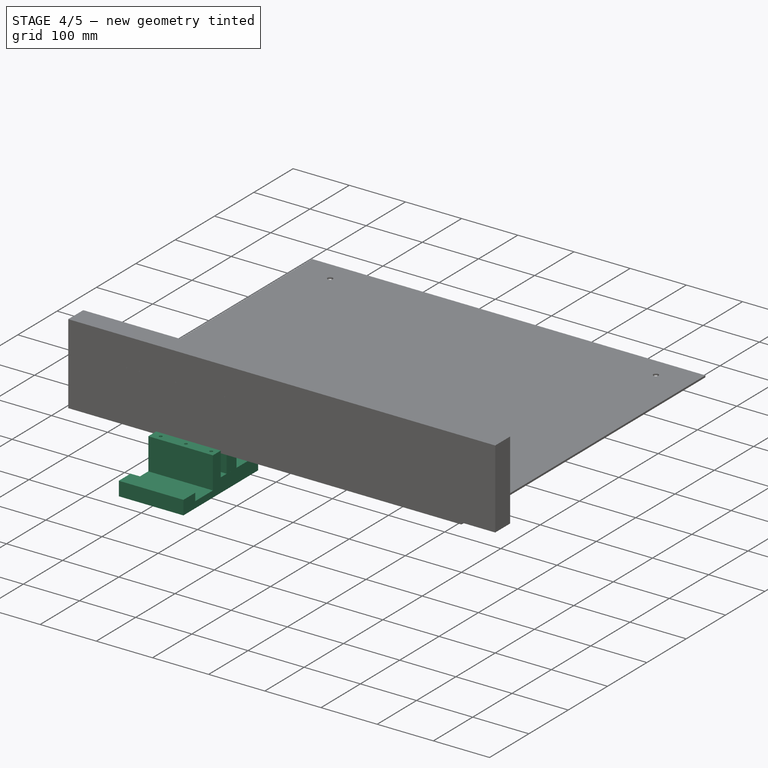
[diagram: stage 4 of 5 — iso view after this stage's code; geometry added in this stage tinted green]
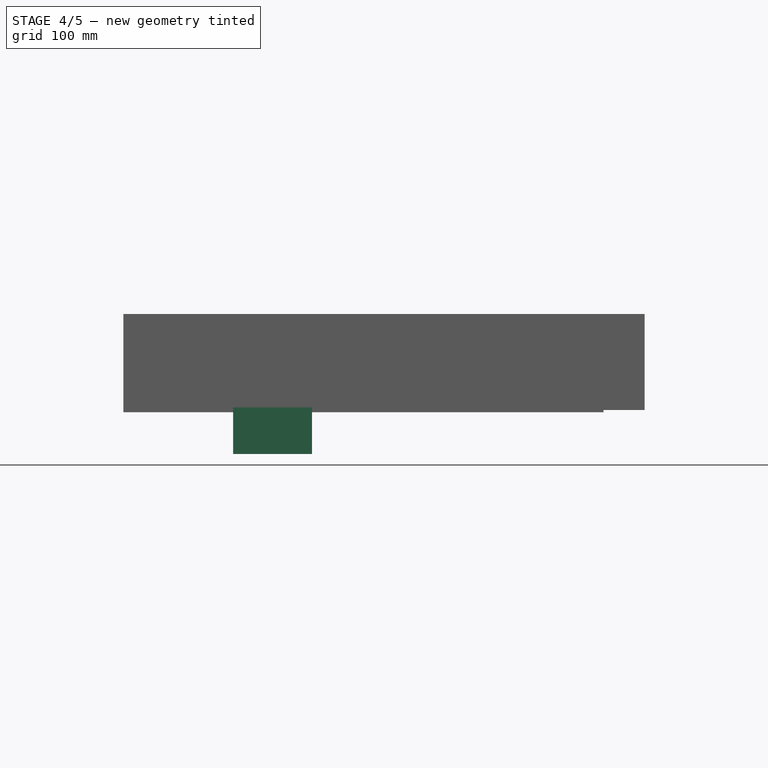
[diagram: stage 4 of 5 — front view after this stage's code; geometry added in this stage tinted green]
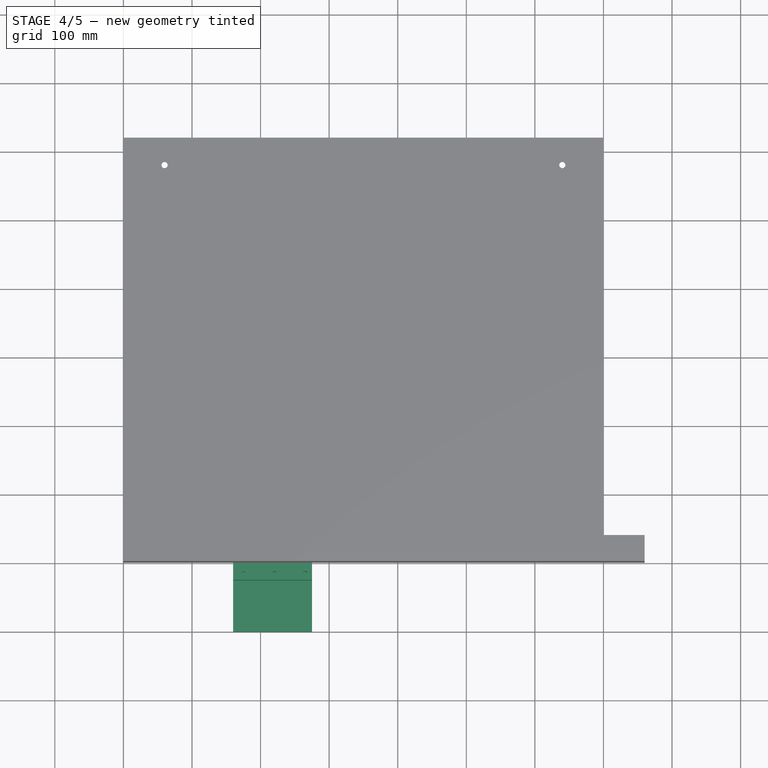
[diagram: stage 4 of 5 — top view after this stage's code; geometry added in this stage tinted green]
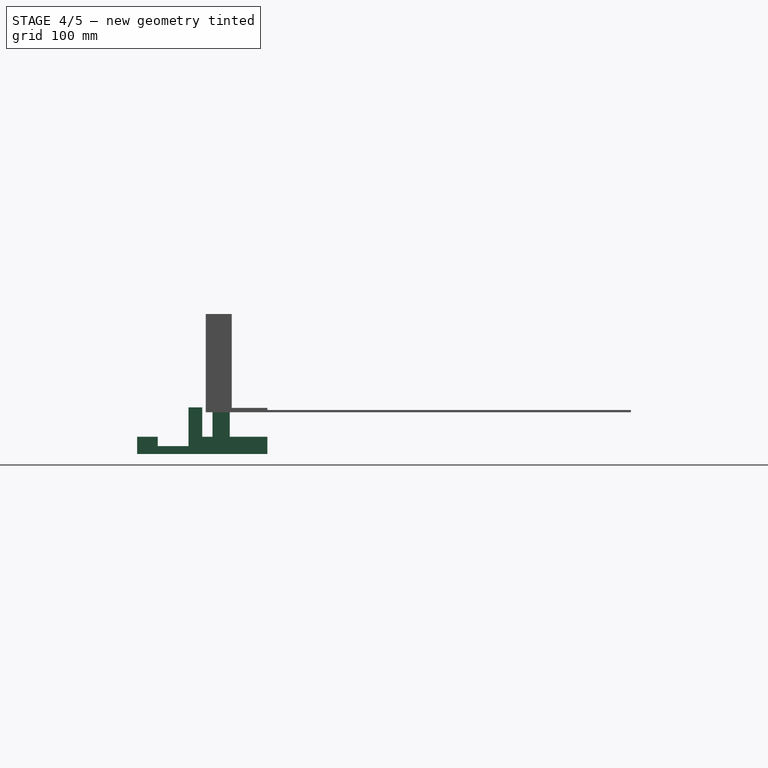
[diagram: stage 4 of 5 — right view after this stage's code; geometry added in this stage tinted green]
FEATURE [Sketcher::SketchObject] Sketch033  label="DeskTopSketch"
  ArcFitTolerance = 1e-06
  AttachmentSupport = -> [XY_Plane007]
  FullyConstrained = false
  MakeInternals = false
  MapMode = 5
  sketch-geometry (33):
    g0: LineSegment StartX=0 StartY=0 StartZ=0 EndX=700 EndY=0 EndZ=0
    g1: LineSegment StartX=700 StartY=0 StartZ=0 EndX=700 EndY=360 EndZ=0
    g2: LineSegment StartX=700 StartY=360 StartZ=0 EndX=0 EndY=360 EndZ=0
    g3: LineSegment StartX=0 StartY=360 StartZ=0 EndX=0 EndY=0 EndZ=0
    g4: LineSegment StartX=303 StartY=247 StartZ=0 EndX=303 EndY=103 EndZ=0
    g5: LineSegment StartX=303 StartY=103 StartZ=0 EndX=382 EndY=103 EndZ=0
    g6: LineSegment StartX=382 StartY=103 StartZ=0 EndX=382 EndY=247 EndZ=0
    g7: LineSegment StartX=382 StartY=247 StartZ=0 EndX=303 EndY=247 EndZ=0
    g8: Circle CenterX=310 CenterY=95 CenterZ=0 NormalX=0 NormalY=0 NormalZ=1 AngleXU=0 Radius=3.70132
    g9: Circle CenterX=310 CenterY=255 CenterZ=0 NormalX=0 NormalY=0 NormalZ=1 AngleXU=0 Radius=3.70132
    g10: Circle CenterX=410 CenterY=65 CenterZ=0 NormalX=0 NormalY=0 NormalZ=1 AngleXU=0 Radius=3.70132
    g11: Circle CenterX=375 CenterY=95 CenterZ=0 NormalX=0 NormalY=0 NormalZ=1 AngleXU=0 Radius=3.70132
    g12: LineSegment StartX=418 StartY=282 StartZ=0 EndX=418 EndY=68 EndZ=0
    g13: LineSegment StartX=418 StartY=68 StartZ=0 EndX=497 EndY=68 EndZ=0
    g14: LineSegment StartX=497 StartY=68 StartZ=0 EndX=497 EndY=282 EndZ=0
    g15: LineSegment StartX=497 StartY=282 StartZ=0 EndX=418 EndY=282 EndZ=0
    g16: Circle CenterX=375 CenterY=255 CenterZ=0 NormalX=0 NormalY=0 NormalZ=1 AngleXU=0 Radius=3.70132
    g17: Circle CenterX=410 CenterY=285 CenterZ=0 NormalX=0 NormalY=0 NormalZ=1 AngleXU=0 Radius=3.70132
    g18: Circle CenterX=505 CenterY=285 CenterZ=0 NormalX=0 NormalY=0 NormalZ=1 AngleXU=0 Radius=3.70132
    g19: Circle CenterX=505 CenterY=65 CenterZ=0 NormalX=0 NormalY=0 NormalZ=1 AngleXU=0 Radius=3.70132
    g20: Circle CenterX=545 CenterY=65 CenterZ=0 NormalX=0 NormalY=0 NormalZ=1 AngleXU=0 Radius=3.70132
    g21: LineSegment StartX=553 StartY=282 StartZ=0 EndX=553 EndY=68 EndZ=0
    g22: LineSegment StartX=553 StartY=68 StartZ=0 EndX=632 EndY=68 EndZ=0
    g23: LineSegment StartX=632 StartY=68 StartZ=0 EndX=632 EndY=282 EndZ=0
    g24: LineSegment StartX=632 StartY=282 StartZ=0 EndX=553 EndY=282 EndZ=0
    g25: Circle CenterX=545 CenterY=285 CenterZ=0 NormalX=0 NormalY=0 NormalZ=1 AngleXU=0 Radius=3.70132
    g26: Circle CenterX=640 CenterY=285 CenterZ=0 NormalX=0 NormalY=0 NormalZ=1 AngleXU=0 Radius=3.70132
    g27: Circle CenterX=640 CenterY=65 CenterZ=0 NormalX=0 NormalY=0 NormalZ=1 AngleXU=0 Radius=3.70132
    g28: Circle CenterX=125 CenterY=275 CenterZ=0 NormalX=0 NormalY=0 NormalZ=1 AngleXU=0 Radius=11.5
    g29: Circle CenterX=250 CenterY=225 CenterZ=0 NormalX=0 NormalY=0 NormalZ=1 AngleXU=0 Radius=11.5
    g30: Circle CenterX=75 CenterY=275 CenterZ=0 NormalX=0 NormalY=0 NormalZ=1 AngleXU=0 Radius=11.5
    g31: Circle CenterX=200 CenterY=225 CenterZ=0 NormalX=0 NormalY=0 NormalZ=1 AngleXU=0 Radius=11.5
    g32: Circle CenterX=100 CenterY=225 CenterZ=0 NormalX=0 NormalY=0 NormalZ=1 AngleXU=0 Radius=11.5
  constraints (38):
    c: Coincident(g0,g1)
    c: Coincident(g1,g2)
    c: Coincident(g2,g3)
    c: Coincident(g3,g0)
    c: Horizontal(g0)
    c: Horizontal(g2)
    c: Vertical(g1)
    c: Vertical(g3)
    c: Coincident(g0,g-1)
    c: Coincident(g4,g5)
    c: Coincident(g5,g6)
    c: Coincident(g6,g7)
    c: Coincident(g7,g4)
    c: Vertical(g4)
    c: Vertical(g6)
    c: Horizontal(g5)
    c: Horizontal(g7)
    c: Coincident(g12,g13)
    c: Coincident(g13,g14)
    c: Coincident(g14,g15)
    c: Coincident(g15,g12)
    c: Vertical(g12)
    c: Vertical(g14)
    c: Horizontal(g13)
    c: Horizontal(g15)
    c: Coincident(g21,g22)
    c: Coincident(g22,g23)
    c: Coincident(g23,g24)
    c: Coincident(g24,g21)
    c: Vertical(g21)
    c: Vertical(g23)
    c: Horizontal(g22)
    c: Horizontal(g24)
    c: Diameter(g28) = 23
    c: Diameter(g29) = 23
    c: Diameter(g30) = 23
    c: Diameter(g31) = 23
    c: Diameter(g32) = 23
FEATURE [Part::Feature] Part__Feature001  label="ThrottleCenterpiece001"
  shape: bbox 50 x 200 x 158 mm, 44 faces (baked)
FEATURE [Part::Feature] Part__Feature002  label="ThrottleLever001"
  shape: bbox 31.99 x 31.99 x 225 mm, 9 faces (baked)
FEATURE [Part::Feature] Part__Feature003  label="FrontPlate002"
  shape: bbox 125 x 250 x 52.15 mm, 52 faces (baked)
FEATURE [Part::Feature] Part__Feature004  label="BackPlate001"
  shape: bbox 55.2 x 210 x 140 mm, 42 faces (baked)
FEATURE [Part::Feature] Part__Feature005  label="SpringCover001"
  Placement = pos=(10,50,0) rot=(0,0,1;0rad)
  shape: bbox 5 x 38 x 38 mm, 14 faces (baked)
FEATURE [Part::Feature] Part__Feature006  label="BallDetent001"
  Placement = pos=(0,70,20) rot=(0,0,1;0rad)
  shape: bbox 16 x 19.8 x 19.8 mm, 8 faces (baked)
FEATURE [Part::Feature] Part__Feature007  label="FrontLid001"
  shape: bbox 15 x 210 x 140 mm, 23 faces (baked)
FEATURE [Part::Feature] Part__Feature008  label="potenciometer001"
  Placement = pos=(50,6.7e-15,0) rot=(0,0,1;1.5708rad)
  shape: bbox 24.25 x 25.11 x 17.32 mm, 416 faces (baked)
FEATURE [App::Part] Throttle
  Group = -> [Part__Feature001,Part__Feature002,Part__Feature003,Part__Feature004,Part__Feature005,Part__Feature006,Part__Feature007,Part__Feature008]
  Origin = -> Origin008
  Placement = pos=(435,175,-65) rot=(0,0,1;0rad)
FEATURE [Part::Feature] Part__Feature  label="ReverserHandle"
  Placement = pos=(-5,25,-45) rot=(0,0,1;1.5708rad)
  shape: bbox 27 x 27 x 145 mm, 58 faces (baked)
FEATURE [Part::Feature] Part__Feature009  label="ReverserControlFrame"
  shape: bbox 180 x 85 x 34.14 mm, 52 faces (baked)
FEATURE [Part::Feature] Part__Feature010  label="ReverserKeywayEntry"
  shape: bbox 130 x 59.5 x 110 mm, 68 faces (baked)
FEATURE [Part::Feature] Part__Feature011  label="ReverserBackBodyFrame"
  shape: bbox 140 x 45 x 110 mm, 36 faces (baked)
FEATURE [Part::Feature] Part__Feature012  label="ReverserInterlock"
  Placement = pos=(0,5,-30) rot=(0,0,1;0rad)
  shape: bbox 39 x 40 x 14 mm, 35 faces (baked)
FEATURE [Part::Feature] Part__Feature013  label="ReverserInterlockSpringLid"
  shape: bbox 60 x 8 x 25 mm, 30 faces (baked)
FEATURE [Part::Feature] Part__Feature014  label="ReverserBackBodyTopFrame"
  shape: bbox 140 x 30 x 110 mm, 29 faces (baked)
FEATURE [Part::Feature] Part__Feature015  label="ReverserLatchPin"
  shape: bbox 19.5 x 33 x 19.5 mm, 14 faces (baked)
FEATURE [Part::Feature] Part__Feature016  label="ReverserLatchPinCover"
  shape: bbox 50 x 25 x 55 mm, 38 faces (baked)
FEATURE [App::Part] ReverserControls2  label="Reverser"
  Group = -> [Part__Feature,Part__Feature009,Part__Feature010,Part__Feature011,Part__Feature012,Part__Feature013,Part__Feature014,Part__Feature015,Part__Feature016]
  Origin = -> Origin
  Placement = pos=(385,175,0) rot=(0,0,1;1.5708rad)
FEATURE [Part::Feature] Part__Feature017  label="ThrottleCenterpiece002"
  shape: bbox 50 x 200 x 158 mm, 44 faces (baked)
FEATURE [Part::Feature] Part__Feature018  label="ThrottleLever002"
  shape: bbox 31.99 x 31.99 x 225 mm, 9 faces (baked)
FEATURE [Part::Feature] Part__Feature019  label="FrontPlate003"
  shape: bbox 125 x 250 x 52.15 mm, 52 faces (baked)
FEATURE [Part::Feature] Part__Feature020  label="BackPlate002"
  shape: bbox 55.2 x 210 x 140 mm, 42 faces (baked)
FEATURE [Part::Feature] Part__Feature021  label="SpringCover002"
  Placement = pos=(10,50,0) rot=(0,0,1;0rad)
  shape: bbox 5 x 38 x 38 mm, 14 faces (baked)
FEATURE [Part::Feature] Part__Feature022  label="BallDetent002"
  Placement = pos=(0,70,20) rot=(0,0,1;0rad)
  shape: bbox 16 x 19.8 x 19.8 mm, 8 faces (baked)
FEATURE [Part::Feature] Part__Feature023  label="FrontLid002"
  shape: bbox 15 x 210 x 140 mm, 23 faces (baked)
FEATURE [Part::Feature] Part__Feature024  label="potenciometer002"
  Placement = pos=(50,6.7e-15,0) rot=(0,0,1;1.5708rad)
  shape: bbox 24.25 x 25.11 x 17.32 mm, 416 faces (baked)
FEATURE [App::Part] Throttle001  label="Brakes"
  Group = -> [Part__Feature017,Part__Feature018,Part__Feature019,Part__Feature020,Part__Feature021,Part__Feature022,Part__Feature023,Part__Feature024]
  Origin = -> Origin009
  Placement = pos=(570,175,-65) rot=(0,0,1;0rad)
FEATURE [Part::Feature] Part__Feature025  label="GCX1139 OPERATOR"
  shape: bbox 32.31 x 28.2 x 32.31 mm, 49 faces (baked)
FEATURE [Part::Feature] Part__Feature026  label="GCX1139 OPERATOR001"
  shape: bbox 43.3 x 20 x 43.3 mm, 12 faces (baked)
FEATURE [App::Part] GCX1139_OPERATOR  label="GCX1139 OPERATOR002"
  Group = -> [Part__Feature025,Part__Feature026]
  Origin = -> Origin010
FEATURE [Part::Feature] Part__Feature027  label="ECX1029-2"
  Placement = pos=(-1.39e-14,4.65,0) rot=(-1,0,0;1.5708rad)
  shape: bbox 29.91 x 11.68 x 40 mm, 191 faces (baked)
FEATURE [Part::Feature] Part__Feature028  label="ECX1029-003"
  Placement = pos=(-1.39e-14,4.65,0) rot=(-1,0,0;1.5708rad)
  shape: bbox 6.155 x 21.2 x 8.126 mm, 22 faces (baked)
FEATURE [Part::Feature] Part__Feature029  label="ECX1029-004"
  Placement = pos=(-1.39e-14,4.65,0) rot=(-1,0,0;1.5708rad)
  shape: bbox 6.155 x 21.2 x 8.126 mm, 22 faces (baked)
FEATURE [App::Part] ECX1029_2  label="ECX1029-005"
  Group = -> [Part__Feature027,Part__Feature028,Part__Feature029]
  Origin = -> Origin011
FEATURE [Part::Feature] Part__Feature030  label="ecx1040"
  Placement = pos=(-8.35367,-6.4,0) rot=(0,0.707107,0.707107;3.14159rad)
  shape: bbox 14.7 x 32 x 35.54 mm, 93 faces (baked)
FEATURE [App::Part] GCX1139
  Group = -> [GCX1139_OPERATOR,ECX1029_2,Part__Feature030]
  Origin = -> Origin012
  Placement = pos=(100,225,-10) rot=(1,0,0;1.5708rad)
FEATURE [Part::Feature] Part__Feature031  label="ecx1029"
  Placement = pos=(0,0,0) rot=(-1,0,0;1.5708rad)
  shape: bbox 29.91 x 11.68 x 40 mm, 191 faces (baked)
FEATURE [Part::Feature] Part__Feature032  label="ecx1041"
  Placement = pos=(0,0,0) rot=(-1,0,0;1.5708rad)
  shape: bbox 6.155 x 21.2 x 8.126 mm, 22 faces (baked)
FEATURE [Part::Feature] Part__Feature033  label="ecx1042"
  Placement = pos=(0,0,0) rot=(-1,0,0;1.5708rad)
  shape: bbox 6.155 x 21.2 x 8.126 mm, 22 faces (baked)
FEATURE [App::Part] ecx1029  label="ecx1043"
  Group = -> [Part__Feature031,Part__Feature032,Part__Feature033]
  Origin = -> Origin013
FEATURE [Part::Feature] Part__Feature034  label="GCX1231L OPERATOR"
  Placement = pos=(0,-4.65,0) rot=(0,0,1;0rad)
  shape: bbox 27.74 x 18.75 x 27.74 mm, 44 faces (baked)
FEATURE [Part::Feature] Part__Feature035  label="GCX1231L OPERATOR001"
  Placement = pos=(0,-4.65,0) rot=(0,0,1;0rad)
  shape: bbox 23.41 x 7 x 23.41 mm, 6 faces (baked)
FEATURE [Part::Feature] Part__Feature036  label="GCX1231L OPERATOR002"
  Placement = pos=(0,-4.65,0) rot=(0,0,1;0rad)
  shape: bbox 31.71 x 13.81 x 31.71 mm, 12 faces (baked)
FEATURE [App::Part] GCX1231L_OPERATOR  label="GCX1231L OPERATOR003"
  Group = -> [Part__Feature034,Part__Feature035,Part__Feature036]
  Origin = -> Origin014
FEATURE [Part::Feature] Part__Feature037  label="ECX1050"
  Placement = pos=(3e-16,-21.55,-2e-16) rot=(0,-1,0;1.5708rad)
  shape: bbox 29.6 x 39 x 31.6 mm, 42 faces (baked)
FEATURE [App::Part] GCX1231_24L  label="GCX1231-24L"
  Group = -> [ecx1029,GCX1231L_OPERATOR,Part__Feature037]
  Origin = -> Origin015
  Placement = pos=(75,275,-5) rot=(1,0,0;1.5708rad)
FEATURE [Part::Feature] Part__Feature038  label="ECX2070-24"
  shape: bbox 26.5 x 0.8 x 26.5 mm, 6 faces (baked)
FEATURE [Part::Feature] Part__Feature039  label="ECX2070-025"
  shape: bbox 29 x 11 x 29 mm, 65 faces (baked)
FEATURE [Part::Feature] Part__Feature040  label="ECX2070-026"
  shape: bbox 4.33 x 2.001 x 4.296 mm, 18 faces (baked)
FEATURE [Part::Feature] Part__Feature041  label="ECX2070-027"
  shape: bbox 4.33 x 2.001 x 4.296 mm, 18 faces (baked)
FEATURE [Part::Feature] Part__Feature042  label="ECX2070-028"
  shape: bbox 30 x 51 x 30 mm, 45 faces (baked)
FEATURE [Part::Feature] Part__Feature043  label="ECX2070-029"
  shape: bbox 32.01 x 12.5 x 32.01 mm, 44 faces (baked)
FEATURE [App::Part] ECX2070_24  label="ECX2070-030"
  Group = -> [Part__Feature038,Part__Feature039,Part__Feature040,Part__Feature041,Part__Feature042,Part__Feature043]
  Origin = -> Origin016
  Placement = pos=(125,275,1) rot=(1,0,0;1.5708rad)
FEATURE [App::DocumentObjectGroup] Group  label="AutomaticWarningSystem"
  Group = -> [GCX1139,GCX1231_24L,ECX2070_24]
FEATURE [App::DocumentObjectGroup] Group001  label="PropulsionBrakeControls"
  Group = -> [Throttle,ReverserControls2,Throttle001]
FEATURE [Part::Feature] Part__Feature044  label="ecx1044"
  Placement = pos=(0,0,0) rot=(-1,0,0;1.5708rad)
  shape: bbox 29.91 x 11.68 x 40 mm, 191 faces (baked)
FEATURE [Part::Feature] Part__Feature045  label="ecx1045"
  Placement = pos=(0,0,0) rot=(-1,0,0;1.5708rad)
  shape: bbox 6.155 x 21.2 x 8.126 mm, 22 faces (baked)
FEATURE [Part::Feature] Part__Feature046  label="ecx1046"
  Placement = pos=(0,0,0) rot=(-1,0,0;1.5708rad)
  shape: bbox 6.155 x 21.2 x 8.126 mm, 22 faces (baked)
FEATURE [App::Part] ecx1030
  Group = -> [Part__Feature044,Part__Feature045,Part__Feature046]
  Origin = -> Origin017
FEATURE [Part::Feature] Part__Feature047  label="ecx1047"
  Placement = pos=(-8.35367,-11.05,0) rot=(0,0.707107,0.707107;3.14159rad)
  shape: bbox 14.7 x 32 x 35.54 mm, 93 faces (baked)
FEATURE [Part::Feature] Part__Feature048  label="GCX1320 OPERATOR"
  Placement = pos=(0,-4.65,0) rot=(0,0,1;0rad)
  shape: bbox 32.31 x 27.2 x 32.31 mm, 49 faces (baked)
FEATURE [Part::Feature] Part__Feature049  label="GCX1320 OPERATOR001"
  Placement = pos=(0,-4.65,0) rot=(0,0,1;0rad)
  shape: bbox 25.5 x 26.3 x 28.7 mm, 19 faces (baked)
FEATURE [App::Part] GCX1320_OPERATOR  label="GCX1320 OPERATOR002"
  Group = -> [Part__Feature048,Part__Feature049]
  Origin = -> Origin018
FEATURE [Part::Feature] Part__Feature050  label="ecx1048"
  Placement = pos=(8.35367,-11.05,2.71e-14) rot=(-1,0,0;1.5708rad)
  shape: bbox 14.7 x 32 x 35.54 mm, 93 faces (baked)
FEATURE [Part::Feature] Part__Feature051  label="ecx1049"
  Placement = pos=(-8.35367,-37.05,9e-16) rot=(0,0.707107,0.707107;3.14159rad)
  shape: bbox 14.7 x 32 x 35.54 mm, 93 faces (baked)
FEATURE [Part::Feature] Part__Feature052  label="ecx1050"
  Placement = pos=(8.35367,-37.05,2.67e-14) rot=(-1,0,0;1.5708rad)
  shape: bbox 14.7 x 32 x 35.54 mm, 93 faces (baked)
FEATURE [App::Part] GCX1320_22  label="GCX1320-22"
  Group = -> [ecx1030,Part__Feature047,GCX1320_OPERATOR,Part__Feature050,Part__Feature051,Part__Feature052]
  Origin = -> Origin019
  Placement = pos=(250,225,-5) rot=(1,0,0;1.5708rad)
FEATURE [App::DocumentObjectGroup] Group002  label="BellControls"
  Group = -> [GCX1320_22]
FEATURE [Part::Feature] Part__Feature053  label="GCX1134 OPERATOR"
  shape: bbox 32.31 x 28.2 x 32.31 mm, 49 faces (baked)
FEATURE [Part::Feature] Part__Feature054  label="GCX1134 OPERATOR001"
  shape: bbox 43.3 x 20 x 43.3 mm, 12 faces (baked)
FEATURE [App::Part] GCX1134_OPERATOR  label="GCX1134 OPERATOR002"
  Group = -> [Part__Feature053,Part__Feature054]
  Origin = -> Origin020
FEATURE [Part::Feature] Part__Feature055  label="ECX1029-006"
  Placement = pos=(-1.39e-14,4.65,0) rot=(-1,0,0;1.5708rad)
  shape: bbox 29.91 x 11.68 x 40 mm, 191 faces (baked)
FEATURE [Part::Feature] Part__Feature056  label="ECX1029-007"
  Placement = pos=(-1.39e-14,4.65,0) rot=(-1,0,0;1.5708rad)
  shape: bbox 6.155 x 21.2 x 8.126 mm, 22 faces (baked)
FEATURE [Part::Feature] Part__Feature057  label="ECX1029-008"
  Placement = pos=(-1.39e-14,4.65,0) rot=(-1,0,0;1.5708rad)
  shape: bbox 6.155 x 21.2 x 8.126 mm, 22 faces (baked)
FEATURE [App::Part] ECX1029_003  label="ECX1029-009"
  Group = -> [Part__Feature055,Part__Feature056,Part__Feature057]
  Origin = -> Origin021
FEATURE [Part::Feature] Part__Feature058  label="ecx1051"
  Placement = pos=(-8.35367,-6.4,0) rot=(0,0.707107,0.707107;3.14159rad)
  shape: bbox 14.7 x 32 x 35.54 mm, 93 faces (baked)
FEATURE [App::Part] GCX1134
  Group = -> [GCX1134_OPERATOR,ECX1029_003,Part__Feature058]
  Origin = -> Origin022
  Placement = pos=(200,225,-9) rot=(1,0,0;1.5708rad)
FEATURE [App::DocumentObjectGroup] Group003  label="HornControls"
  Group = -> [GCX1134]
FEATURE [PartDesign::Pad] Pad  label="SheetMetalExtrusion"
  Direction = (0,0,1)
  Length = 3.175
  Length2 = 10
  Profile = -> Sketch033
  ReferenceAxis = -> Sketch033 [N_Axis]
  Refine = true
  Reversed = true
  Suppressed = false
  Type = 0
FEATURE [Sketcher::SketchObject] Sketch  label="MountingHoles"
  ArcFitTolerance = 1e-06
  AttachmentSupport = -> [XY_Plane007]
  FullyConstrained = false
  MakeInternals = false
  MapMode = 5
  sketch-geometry (4):
    g0: Circle CenterX=20 CenterY=340 CenterZ=0 NormalX=0 NormalY=0 NormalZ=1 AngleXU=0 Radius=10
    g1: Circle CenterX=20 CenterY=20 CenterZ=0 NormalX=0 NormalY=0 NormalZ=1 AngleXU=0 Radius=10
    g2: Circle CenterX=680 CenterY=20 CenterZ=0 NormalX=0 NormalY=0 NormalZ=1 AngleXU=0 Radius=10
    g3: Circle CenterX=680 CenterY=340 CenterZ=0 NormalX=0 NormalY=0 NormalZ=1 AngleXU=0 Radius=10
FEATURE [PartDesign::Hole] Hole  label="SheetWithMountingHoles"
  BaseFeature = -> Pad
  CustomThreadClearance = 0
  Depth = 25
  DepthType = 0
  Diameter = 9
  DrillForDepth = false
  DrillPoint = 1
  DrillPointAngle = 118
  HoleCutCountersinkAngle = 90
  HoleCutCustomValues = false
  HoleCutDepth = 0
  HoleCutDiameter = 6.1
  HoleCutType = 0
  ModelThread = false
  Profile = -> Sketch
  Refine = true
  Suppressed = false
  Tapered = false
  TaperedAngle = 90
  ThreadClass = 0
  ThreadDepth = 25
  ThreadDepthType = 0
  ThreadDirection = 0
  ThreadFit = 0
  ThreadSize = 16
  ThreadType = 1
  Threaded = false
  UseCustomThreadClearance = false
FEATURE [Sketcher::SketchObject] Sketch035  label="ClampBack"
  ArcFitTolerance = 1e-06
  AttachmentOffset = pos=(0,0,-39) rot=(0,0,1;0rad)
  AttachmentSupport = -> [XY_Plane042]
  FullyConstrained = false
  MakeInternals = false
  MapMode = 5
  Placement = pos=(0,0,-39) rot=(0,0,1;0rad)
  sketch-geometry (4):
    g0: LineSegment StartX=160 StartY=90 StartZ=0 EndX=160 EndY=-20 EndZ=0
    g1: LineSegment StartX=160 StartY=-20 StartZ=0 EndX=275 EndY=-20 EndZ=0
    g2: LineSegment StartX=275 StartY=-20 StartZ=0 EndX=275 EndY=90 EndZ=0
    g3: LineSegment StartX=275 StartY=90 StartZ=0 EndX=160 EndY=90 EndZ=0
  constraints (8):
    c: Coincident(g0,g1)
    c: Coincident(g1,g2)
    c: Coincident(g2,g3)
    c: Coincident(g3,g0)
    c: Vertical(g0)
    c: Vertical(g2)
    c: Horizontal(g1)
    c: Horizontal(g3)
FEATURE [PartDesign::Pad] Pad002  label="MountingClampBase"
  Direction = (0,0,1)
  Length = 25
  Length2 = 10
  Profile = -> Sketch035
  ReferenceAxis = -> Sketch035 [N_Axis]
  Refine = true
  Reversed = true
  Suppressed = false
  Type = 0
FEATURE [Sketcher::SketchObject] Sketch036  label="MountingClampAttachment"
  ArcFitTolerance = 1e-06
  AttachmentOffset = pos=(0,0,4) rot=(0,0,1;0rad)
  AttachmentSupport = -> [XY_Plane042]
  FullyConstrained = false
  MakeInternals = false
  MapMode = 5
  Placement = pos=(0,0,4) rot=(0,0,1;0rad)
  sketch-geometry (4):
    g0: LineSegment StartX=160 StartY=-5 StartZ=0 EndX=160 EndY=-25 EndZ=0
    g1: LineSegment StartX=160 StartY=-25 StartZ=0 EndX=275 EndY=-25 EndZ=0
    g2: LineSegment StartX=275 StartY=-25 StartZ=0 EndX=275 EndY=-5 EndZ=0
    g3: LineSegment StartX=275 StartY=-5 StartZ=0 EndX=160 EndY=-5 EndZ=0
  constraints (8):
    c: Coincident(g0,g1)
    c: Coincident(g1,g2)
    c: Coincident(g2,g3)
    c: Coincident(g3,g0)
    c: Vertical(g0)
    c: Vertical(g2)
    c: Horizontal(g1)
    c: Horizontal(g3)
FEATURE [PartDesign::Pad] Pad003  label="ClampAttachmentBase"
  BaseFeature = -> Pad002
  Direction = (0,0,1)
  Length = 68
  Length2 = 10
  Profile = -> Sketch036
  ReferenceAxis = -> Sketch036 [N_Axis]
  Refine = true
  Reversed = true
  Suppressed = false
  Type = 0
FEATURE [Sketcher::SketchObject] Sketch037  label="AttachmentScrews"
  ArcFitTolerance = 1e-06
  AttachmentOffset = pos=(0,0,4) rot=(0,0,1;0rad)
  AttachmentSupport = -> [XY_Plane042]
  FullyConstrained = false
  MakeInternals = false
  MapMode = 5
  Placement = pos=(0,0,4) rot=(0,0,1;0rad)
  sketch-geometry (3):
    g0: Circle CenterX=175 CenterY=-15 CenterZ=0 NormalX=0 NormalY=0 NormalZ=1 AngleXU=0 Radius=5
    g1: Circle CenterX=265 CenterY=-15 CenterZ=0 NormalX=0 NormalY=0 NormalZ=1 AngleXU=0 Radius=5
    g2: Circle CenterX=220 CenterY=-15 CenterZ=0 NormalX=0 NormalY=0 NormalZ=1 AngleXU=0 Radius=5
FEATURE [PartDesign::Hole] Hole001
  BaseFeature = -> Pad003
  CustomThreadClearance = 0
  Depth = 369.577
  DepthType = 1
  Diameter = 5.5
  DrillForDepth = false
  DrillPoint = 1
  DrillPointAngle = 118
  HoleCutCountersinkAngle = 90
  HoleCutCustomValues = false
  HoleCutDepth = 0
  HoleCutDiameter = 6.1
  HoleCutType = 0
  ModelThread = false
  Profile = -> Sketch037
  Refine = true
  Suppressed = false
  Tapered = false
  TaperedAngle = 90
  ThreadClass = 0
  ThreadDepth = 369.577
  ThreadDepthType = 0
  ThreadDirection = 0
  ThreadFit = 0
  ThreadSize = 13
  ThreadType = 1
  Threaded = false
  UseCustomThreadClearance = false
FEATURE [Sketcher::SketchObject] Sketch038  label="ClampBack001"
  ArcFitTolerance = 1e-06
  AttachmentOffset = pos=(0,0,-39) rot=(0,0,1;0rad)
  AttachmentSupport = -> [XY_Plane044]
  FullyConstrained = false
  MakeInternals = false
  MapMode = 5
  Placement = pos=(0,0,-39) rot=(0,0,1;0rad)
  sketch-geometry (4):
    g0: LineSegment StartX=160 StartY=35 StartZ=0 EndX=160 EndY=-100 EndZ=0
    g1: LineSegment StartX=160 StartY=-100 StartZ=0 EndX=275 EndY=-100 EndZ=0
    g2: LineSegment StartX=275 StartY=-100 StartZ=0 EndX=275 EndY=35 EndZ=0
    g3: LineSegment StartX=275 StartY=35 StartZ=0 EndX=160 EndY=35 EndZ=0
  constraints (8):
    c: Coincident(g0,g1)
    c: Coincident(g1,g2)
    c: Coincident(g2,g3)
    c: Coincident(g3,g0)
    c: Vertical(g0)
    c: Vertical(g2)
    c: Horizontal(g1)
    c: Horizontal(g3)
FEATURE [PartDesign::Pad] Pad004  label="MountingClampBase001"
  Direction = (0,0,1)
  Length = 25
  Length2 = 10
  Profile = -> Sketch038
  ReferenceAxis = -> Sketch038 [N_Axis]
  Refine = true
  Reversed = true
  Suppressed = false
  Type = 0
FEATURE [Sketcher::SketchObject] Sketch039  label="MountingClampAttachment001"
  ArcFitTolerance = 1e-06
  AttachmentOffset = pos=(0,0,4) rot=(0,0,1;0rad)
  AttachmentSupport = -> [XY_Plane044]
  FullyConstrained = false
  MakeInternals = false
  MapMode = 5
  Placement = pos=(0,0,4) rot=(0,0,1;0rad)
  sketch-geometry (4):
    g0: LineSegment StartX=160 StartY=35 StartZ=0 EndX=160 EndY=10 EndZ=0
    g1: LineSegment StartX=160 StartY=10 StartZ=0 EndX=275 EndY=10 EndZ=0
    g2: LineSegment StartX=275 StartY=10 StartZ=0 EndX=275 EndY=35 EndZ=0
    g3: LineSegment StartX=275 StartY=35 StartZ=0 EndX=160 EndY=35 EndZ=0
  constraints (8):
    c: Coincident(g0,g1)
    c: Coincident(g1,g2)
    c: Coincident(g2,g3)
    c: Coincident(g3,g0)
    c: Vertical(g0)
    c: Vertical(g2)
    c: Horizontal(g1)
    c: Horizontal(g3)
FEATURE [Sketcher::SketchObject] Sketch040  label="AttachmentScrews001"
  ArcFitTolerance = 1e-06
  AttachmentOffset = pos=(0,0,4) rot=(0,0,1;0rad)
  AttachmentSupport = -> [XY_Plane044]
  FullyConstrained = false
  MakeInternals = false
  MapMode = 5
  Placement = pos=(0,0,4) rot=(0,0,1;0rad)
  sketch-geometry (3):
    g0: Circle CenterX=175 CenterY=25 CenterZ=0 NormalX=0 NormalY=0 NormalZ=1 AngleXU=0 Radius=5
    g1: Circle CenterX=265 CenterY=25 CenterZ=0 NormalX=0 NormalY=0 NormalZ=1 AngleXU=0 Radius=5
    g2: Circle CenterX=220 CenterY=25 CenterZ=0 NormalX=0 NormalY=0 NormalZ=1 AngleXU=0 Radius=5
FEATURE [PartDesign::Pad] Pad005
  BaseFeature = -> Pad004
  Direction = (0,0,1)
  Length = 68
  Length2 = 10
  Profile = -> Sketch039
  ReferenceAxis = -> Sketch039 [N_Axis]
  Refine = true
  Reversed = true
  Suppressed = false
  Type = 0
FEATURE [PartDesign::Hole] Hole002
  BaseFeature = -> Pad005
  CustomThreadClearance = 0
  Depth = 390.905
  DepthType = 1
  Diameter = 5.5
  DrillForDepth = false
  DrillPoint = 1
  DrillPointAngle = 118
  HoleCutCountersinkAngle = 90
  HoleCutCustomValues = false
  HoleCutDepth = 0
  HoleCutDiameter = 6.1
  HoleCutType = 0
  ModelThread = false
  Profile = -> Sketch040
  Refine = true
  Suppressed = false
  Tapered = false
  TaperedAngle = 90
  ThreadClass = 0
  ThreadDepth = 390.905
  ThreadDepthType = 0
  ThreadDirection = 0
  ThreadFit = 0
  ThreadSize = 13
  ThreadType = 1
  Threaded = false
  UseCustomThreadClearance = false
FEATURE [Sketcher::SketchObject] Sketch041
  ArcFitTolerance = 1e-06
  AttachmentOffset = pos=(0,0,160) rot=(0,0,1;0rad)
  AttachmentSupport = -> [YZ_Plane044]
  FullyConstrained = false
  MakeInternals = false
  MapMode = 5
  Placement = pos=(160,0,0) rot=(0.57735,0.57735,0.57735;2.0944rad)
  sketch-geometry (4):
    g0: LineSegment StartX=5 StartY=-35 StartZ=0 EndX=-22.5 EndY=-52.5 EndZ=0
    g1: LineSegment StartX=-22.5 StartY=-52.5 StartZ=0 EndX=-70 EndY=-52.5 EndZ=0
    g2: LineSegment StartX=-70 StartY=-52.5 StartZ=0 EndX=-70 EndY=-37.5 EndZ=0
    g3: LineSegment StartX=-70 StartY=-37.5 StartZ=0 EndX=5 EndY=-35 EndZ=0
  constraints (5):
    c: Coincident(g1,g0)
    c: Horizontal(g1)
    c: Coincident(g2,g1)
    c: Coincident(g3,g2)
    c: Coincident(g3,g0)
FEATURE [PartDesign::Pocket] Pocket
  BaseFeature = -> Hole002
  Direction = (-1,0,0)
  Length = 140
  Length2 = 5
  Profile = -> Sketch041
  ReferenceAxis = -> Sketch041 [N_Axis]
  Refine = true
  Reversed = true
  Suppressed = false
  Type = 0
FEATURE [PartDesign::Body] Body010  label="MonitorTopMountingClamp"
  AllowCompound = false
  Group = -> [Sketch038,Pad004,Sketch039,Sketch040,Pad005,Hole002,Sketch041,Pocket,Sketch042,Hole003]
  Origin = -> Origin044
  Placement = pos=(182.5,599.506,224.506) rot=(1,0,0;0.785398rad)
  Tip = -> Hole003
FEATURE [Sketcher::SketchObject] Sketch043
  ArcFitTolerance = 1e-06
  AttachmentOffset = pos=(0,0,-64) rot=(0,0,1;0rad)
  AttachmentSupport = -> [XY_Plane042]
  FullyConstrained = false
  MakeInternals = false
  MapMode = 5
  Placement = pos=(0,0,-64) rot=(0,0,1;0rad)
  sketch-geometry (2):
    g0: Circle CenterX=167.5 CenterY=77.5 CenterZ=0 NormalX=0 NormalY=0 NormalZ=1 AngleXU=0 Radius=2.5
    g1: Circle CenterX=267.5 CenterY=77.5 CenterZ=0 NormalX=0 NormalY=0 NormalZ=1 AngleXU=0 Radius=2.5
FEATURE [PartDesign::Hole] Hole004
  BaseFeature = -> Hole001
  CustomThreadClearance = 0
  Depth = 369.577
  DepthType = 1
  Diameter = 5.5
  DrillForDepth = false
  DrillPoint = 1
  DrillPointAngle = 118
  HoleCutCountersinkAngle = 90
  HoleCutCustomValues = false
  HoleCutDepth = 6.4
  HoleCutDiameter = 13
  HoleCutType = 10
  ModelThread = false
  Profile = -> Sketch043
  Refine = true
  Reversed = true
  Suppressed = false
  Tapered = false
  TaperedAngle = 90
  ThreadClass = 0
  ThreadDepth = 369.577
  ThreadDepthType = 0
  ThreadDirection = 0
  ThreadFit = 0
  ThreadSize = 13
  ThreadType = 1
  Threaded = false
  UseCustomThreadClearance = false
FEATURE [Sketcher::SketchObject] Sketch045  label="CornerMountingHoles"
  ArcFitTolerance = 1e-06
  AttachmentSupport = -> [XY_Plane023]
  FullyConstrained = false
  MakeInternals = false
  MapMode = 5
  sketch-geometry (8):
    g0: Circle CenterX=20 CenterY=20 CenterZ=0 NormalX=0 NormalY=0 NormalZ=1 AngleXU=0 Radius=10
    g1: Circle CenterX=680 CenterY=20 CenterZ=0 NormalX=0 NormalY=0 NormalZ=1 AngleXU=0 Radius=10
    g2: Circle CenterX=680 CenterY=380 CenterZ=0 NormalX=0 NormalY=0 NormalZ=1 AngleXU=0 Radius=7.37133
    g3: Circle CenterX=20 CenterY=380 CenterZ=0 NormalX=0 NormalY=0 NormalZ=1 AngleXU=0 Radius=7.31515
    g4: Circle CenterX=80 CenterY=20 CenterZ=0 NormalX=0 NormalY=0 NormalZ=1 AngleXU=0 Radius=10
    g5: Circle CenterX=80 CenterY=380 CenterZ=0 NormalX=0 NormalY=0 NormalZ=1 AngleXU=0 Radius=7.31515
    g6: Circle CenterX=620 CenterY=20 CenterZ=0 NormalX=0 NormalY=0 NormalZ=1 AngleXU=0 Radius=10
    g7: Circle CenterX=620 CenterY=380 CenterZ=0 NormalX=0 NormalY=0 NormalZ=1 AngleXU=0 Radius=7.37133
FEATURE [PartDesign::Hole] Hole006  label="CornerMountingHoles001"
  BaseFeature = -> Hole005
  CustomThreadClearance = 0
  Depth = 25
  DepthType = 0
  Diameter = 9
  DrillForDepth = false
  DrillPoint = 1
  DrillPointAngle = 118
  HoleCutCountersinkAngle = 90
  HoleCutCustomValues = false
  HoleCutDepth = 0
  HoleCutDiameter = 6.1
  HoleCutType = 0
  ModelThread = false
  Profile = -> Sketch045
  Refine = true
  Suppressed = false
  Tapered = false
  TaperedAngle = 90
  ThreadClass = 0
  ThreadDepth = 25
  ThreadDepthType = 0
  ThreadDirection = 0
  ThreadFit = 0
  ThreadSize = 16
  ThreadType = 1
  Threaded = false
  UseCustomThreadClearance = false
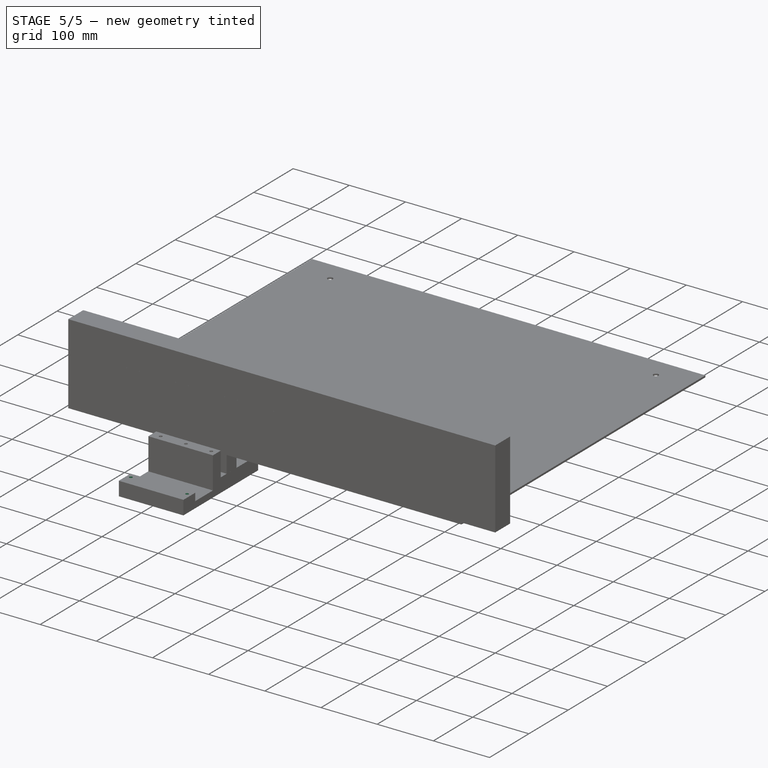
[diagram: stage 5 of 5 — iso view after this stage's code; geometry added in this stage tinted green]
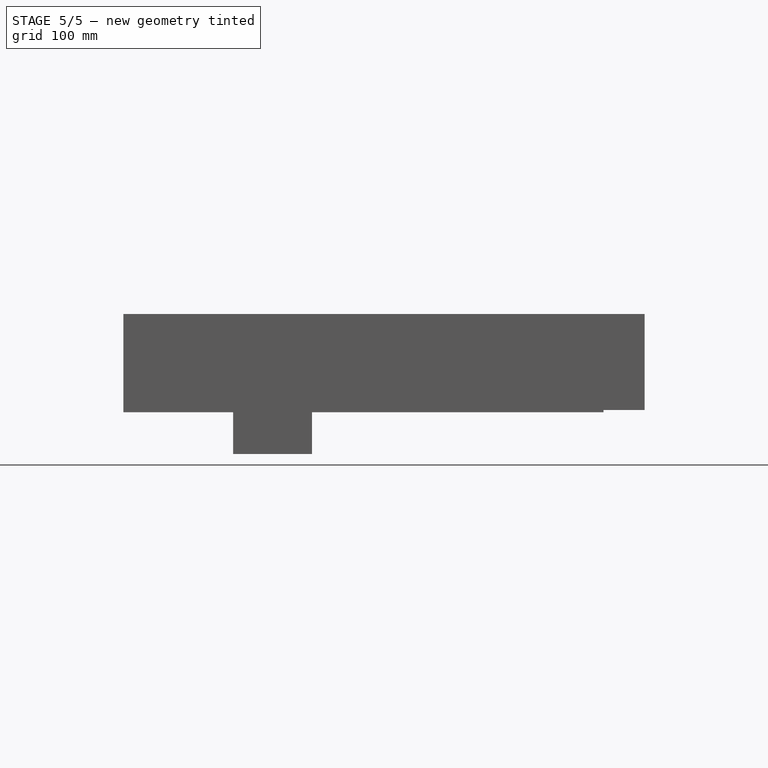
[diagram: stage 5 of 5 — front view after this stage's code; geometry added in this stage tinted green]
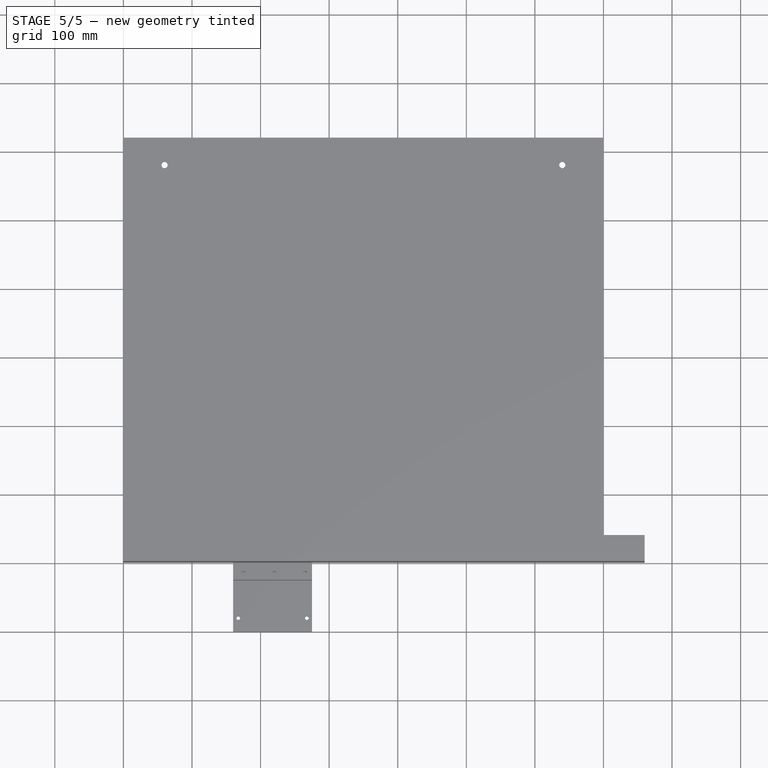
[diagram: stage 5 of 5 — top view after this stage's code; geometry added in this stage tinted green]
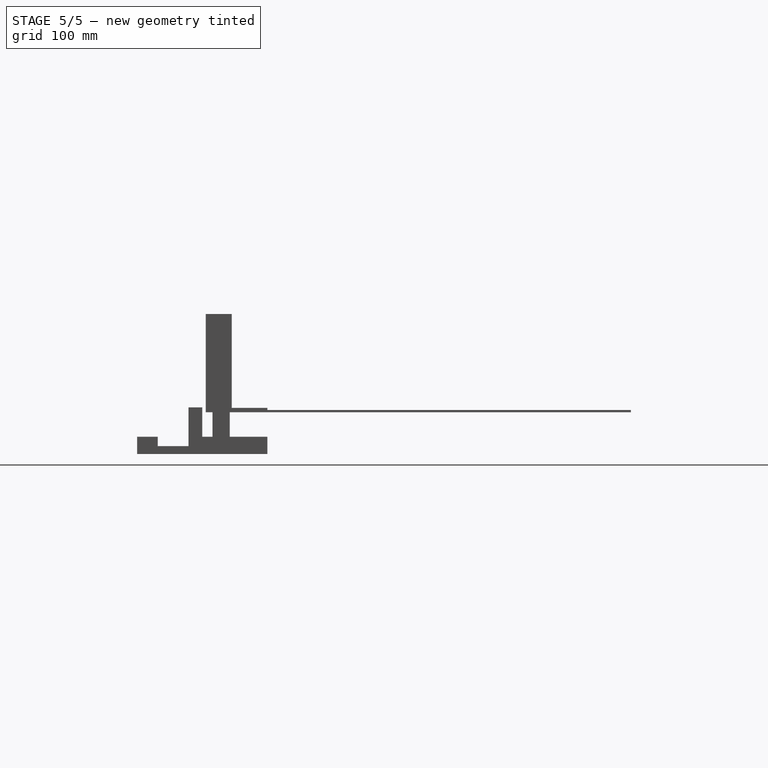
[diagram: stage 5 of 5 — right view after this stage's code; geometry added in this stage tinted green]
FEATURE [Sketcher::SketchObject] Sketch042
  ArcFitTolerance = 1e-06
  AttachmentOffset = pos=(0,0,-64) rot=(0,0,1;0rad)
  AttachmentSupport = -> [XY_Plane044]
  FullyConstrained = false
  MakeInternals = false
  MapMode = 5
  Placement = pos=(0,0,-64) rot=(0,0,1;0rad)
  sketch-geometry (2):
    g0: Circle CenterX=167.5 CenterY=-80 CenterZ=0 NormalX=0 NormalY=0 NormalZ=1 AngleXU=0 Radius=2.5
    g1: Circle CenterX=267.5 CenterY=-80 CenterZ=0 NormalX=0 NormalY=0 NormalZ=1 AngleXU=0 Radius=2.5
FEATURE [PartDesign::Hole] Hole003
  BaseFeature = -> Pocket
  CustomThreadClearance = 0
  Depth = 25
  DepthType = 0
  Diameter = 5.5
  DrillForDepth = false
  DrillPoint = 1
  DrillPointAngle = 118
  HoleCutCountersinkAngle = 90
  HoleCutCustomValues = false
  HoleCutDepth = 6.4
  HoleCutDiameter = 13
  HoleCutType = 10
  ModelThread = false
  Profile = -> Sketch042
  Refine = true
  Reversed = true
  Suppressed = false
  Tapered = false
  TaperedAngle = 90
  ThreadClass = 0
  ThreadDepth = 25
  ThreadDepthType = 0
  ThreadDirection = 0
  ThreadFit = 0
  ThreadSize = 13
  ThreadType = 1
  Threaded = false
  UseCustomThreadClearance = false
FEATURE [PartDesign::Body] Body  label="DeskAngledBack"
  AllowCompound = false
  Group = -> [Sketch034,Pad001,Sketch044,Hole005,Sketch045,Hole006]
  Origin = -> Origin023
  Placement = pos=(0,365,-6e-16) rot=(-1,0,0;5.49779rad)
  Tip = -> Hole006
FEATURE [Sketcher::SketchObject] Sketch046  label="WoodExtrusionBase"
  ArcFitTolerance = 1e-06
  AttachmentSupport = -> [YZ_Plane045]
  FullyConstrained = true
  MakeInternals = false
  MapMode = 5
  Placement = pos=(0,0,0) rot=(0.57735,0.57735,0.57735;2.0944rad)
  sketch-geometry (4):
    g0: LineSegment StartX=0 StartY=0 StartZ=0 EndX=38 EndY=0 EndZ=0
    g1: LineSegment StartX=38 StartY=0 StartZ=0 EndX=38 EndY=140 EndZ=0
    g2: LineSegment StartX=38 StartY=140 StartZ=0 EndX=0 EndY=140 EndZ=0
    g3: LineSegment StartX=0 StartY=140 StartZ=0 EndX=0 EndY=0 EndZ=0
  constraints (11):
    c: Coincident(g0,g1)
    c: Coincident(g1,g2)
    c: Coincident(g2,g3)
    c: Coincident(g3,g0)
    c: Horizontal(g0)
    c: Horizontal(g2)
    c: Vertical(g1)
    c: Vertical(g3)
    c: Distance(g1,g3) = 38
    c: Distance(g0,g2) = 140
    c: Coincident(g0,g-1)
FEATURE [PartDesign::Body] Body011  label="2x6_Base"
  AllowCompound = false
  Group = -> [Sketch046]
  Origin = -> Origin045
FEATURE [Sketcher::SketchObject] Sketch047  label="WoodExtrusionBase001"
  ArcFitTolerance = 1e-06
  AttachmentSupport = -> [YZ_Plane046]
  FullyConstrained = true
  MakeInternals = false
  MapMode = 5
  Placement = pos=(0,0,0) rot=(0.57735,0.57735,0.57735;2.0944rad)
  sketch-geometry (4):
    g0: LineSegment StartX=0 StartY=0 StartZ=0 EndX=38 EndY=0 EndZ=0
    g1: LineSegment StartX=38 StartY=0 StartZ=0 EndX=38 EndY=140 EndZ=0
    g2: LineSegment StartX=38 StartY=140 StartZ=0 EndX=0 EndY=140 EndZ=0
    g3: LineSegment StartX=0 StartY=140 StartZ=0 EndX=0 EndY=0 EndZ=0
  constraints (11):
    c: Coincident(g0,g1)
    c: Coincident(g1,g2)
    c: Coincident(g2,g3)
    c: Coincident(g3,g0)
    c: Horizontal(g0)
    c: Horizontal(g2)
    c: Vertical(g1)
    c: Vertical(g3)
    c: Distance(g1,g3) = 38
    c: Distance(g0,g2) = 140
    c: Coincident(g0,g-1)
FEATURE [PartDesign::Pad] Pad006  label="700mmExtrusion"
  Direction = (1,0,0)
  Length = 700
  Length2 = 10
  Placement = pos=(0,0,0) rot=(1,1,1;2.0944rad)
  Profile = -> Sketch047
  ReferenceAxis = -> Sketch047 [N_Axis]
  Refine = true
  Suppressed = false
  Type = 0
FEATURE [PartDesign::Body] Body012  label="2x6_700mm_001"
  AllowCompound = false
  Group = -> [Sketch047,Pad006]
  Origin = -> Origin046
  Placement = pos=(0,0,-143) rot=(0,0,1;0rad)
  Tip = -> Pad006
FEATURE [Sketcher::SketchObject] Sketch048  label="WoodExtrusionBase002"
  ArcFitTolerance = 1e-06
  AttachmentSupport = -> [YZ_Plane047]
  FullyConstrained = true
  MakeInternals = false
  MapMode = 5
  Placement = pos=(0,0,0) rot=(0.57735,0.57735,0.57735;2.0944rad)
  sketch-geometry (4):
    g0: LineSegment StartX=0 StartY=0 StartZ=0 EndX=38 EndY=0 EndZ=0
    g1: LineSegment StartX=38 StartY=0 StartZ=0 EndX=38 EndY=90 EndZ=0
    g2: LineSegment StartX=38 StartY=90 StartZ=0 EndX=0 EndY=90 EndZ=0
    g3: LineSegment StartX=0 StartY=90 StartZ=0 EndX=0 EndY=0 EndZ=0
  constraints (11):
    c: Coincident(g0,g1)
    c: Coincident(g1,g2)
    c: Coincident(g2,g3)
    c: Coincident(g3,g0)
    c: Horizontal(g0)
    c: Horizontal(g2)
    c: Vertical(g1)
    c: Vertical(g3)
    c: Distance(g1,g3) = 38
    c: Distance(g0,g2) = 90
    c: Coincident(g0,g-1)
FEATURE [PartDesign::Pad] Pad007  label="624mmExtrusion001"
  Direction = (1,0,0)
  Length = 624
  Length2 = 10
  Placement = pos=(0,0,0) rot=(1,1,1;2.0944rad)
  Profile = -> Sketch048
  ReferenceAxis = -> Sketch048 [N_Axis]
  Refine = true
  Suppressed = false
  Type = 0
FEATURE [PartDesign::Body] Body013  label="2x4_624mm_001"
  AllowCompound = false
  Group = -> [Sketch048,Pad007]
  Origin = -> Origin047
  Placement = pos=(38,322,-93) rot=(0,0,1;0rad)
  Tip = -> Pad007
FEATURE [Sketcher::SketchObject] Sketch049  label="WoodExtrusionBase003"
  ArcFitTolerance = 1e-06
  AttachmentSupport = -> [YZ_Plane048]
  FullyConstrained = true
  MakeInternals = false
  MapMode = 5
  Placement = pos=(0,0,0) rot=(0.57735,0.57735,0.57735;2.0944rad)
  sketch-geometry (4):
    g0: LineSegment StartX=0 StartY=0 StartZ=0 EndX=38 EndY=0 EndZ=0
    g1: LineSegment StartX=38 StartY=0 StartZ=0 EndX=38 EndY=140 EndZ=0
    g2: LineSegment StartX=38 StartY=140 StartZ=0 EndX=0 EndY=140 EndZ=0
    g3: LineSegment StartX=0 StartY=140 StartZ=0 EndX=0 EndY=0 EndZ=0
  constraints (11):
    c: Coincident(g0,g1)
    c: Coincident(g1,g2)
    c: Coincident(g2,g3)
    c: Coincident(g3,g0)
    c: Horizontal(g0)
    c: Horizontal(g2)
    c: Vertical(g1)
    c: Vertical(g3)
    c: Distance(g1,g3) = 38
    c: Distance(g0,g2) = 140
    c: Coincident(g0,g-1)
FEATURE [PartDesign::Pad] Pad008  label="700mmExtrusion001"
  Direction = (1,0,0)
  Length = 700
  Length2 = 10
  Placement = pos=(0,0,0) rot=(1,1,1;2.0944rad)
  Profile = -> Sketch049
  ReferenceAxis = -> Sketch049 [N_Axis]
  Refine = true
  Suppressed = false
  Type = 0
FEATURE [PartDesign::Body] Body014  label="2x6_700mm_002"
  AllowCompound = false
  Group = -> [Sketch049,Pad008]
  Origin = -> Origin048
  Placement = pos=(38,38,-143) rot=(0,0,1;1.5708rad)
  Tip = -> Pad008
FEATURE [Sketcher::SketchObject] Sketch050  label="WoodExtrusionBase004"
  ArcFitTolerance = 1e-06
  AttachmentSupport = -> [YZ_Plane049]
  FullyConstrained = true
  MakeInternals = false
  MapMode = 5
  Placement = pos=(0,0,0) rot=(0.57735,0.57735,0.57735;2.0944rad)
  sketch-geometry (4):
    g0: LineSegment StartX=0 StartY=0 StartZ=0 EndX=38 EndY=0 EndZ=0
    g1: LineSegment StartX=38 StartY=0 StartZ=0 EndX=38 EndY=140 EndZ=0
    g2: LineSegment StartX=38 StartY=140 StartZ=0 EndX=0 EndY=140 EndZ=0
    g3: LineSegment StartX=0 StartY=140 StartZ=0 EndX=0 EndY=0 EndZ=0
  constraints (11):
    c: Coincident(g0,g1)
    c: Coincident(g1,g2)
    c: Coincident(g2,g3)
    c: Coincident(g3,g0)
    c: Horizontal(g0)
    c: Horizontal(g2)
    c: Vertical(g1)
    c: Vertical(g3)
    c: Distance(g1,g3) = 38
    c: Distance(g0,g2) = 140
    c: Coincident(g0,g-1)
FEATURE [PartDesign::Pad] Pad009  label="700mmExtrusion002"
  Direction = (1,0,0)
  Length = 700
  Length2 = 10
  Placement = pos=(0,0,0) rot=(1,1,1;2.0944rad)
  Profile = -> Sketch050
  ReferenceAxis = -> Sketch050 [N_Axis]
  Refine = true
  Suppressed = false
  Type = 0
FEATURE [PartDesign::Body] Body015  label="2x6_700mm_003"
  AllowCompound = false
  Group = -> [Sketch050,Pad009]
  Origin = -> Origin049
  Placement = pos=(700,38,-143) rot=(0,0,1;1.5708rad)
  Tip = -> Pad009
FEATURE [Sketcher::SketchObject] Sketch051  label="WoodExtrusionBase005"
  ArcFitTolerance = 1e-06
  AttachmentSupport = -> [YZ_Plane050]
  FullyConstrained = true
  MakeInternals = false
  MapMode = 5
  Placement = pos=(0,0,0) rot=(0.57735,0.57735,0.57735;2.0944rad)
  sketch-geometry (4):
    g0: LineSegment StartX=0 StartY=0 StartZ=0 EndX=38 EndY=0 EndZ=0
    g1: LineSegment StartX=38 StartY=0 StartZ=0 EndX=38 EndY=90 EndZ=0
    g2: LineSegment StartX=38 StartY=90 StartZ=0 EndX=0 EndY=90 EndZ=0
    g3: LineSegment StartX=0 StartY=90 StartZ=0 EndX=0 EndY=0 EndZ=0
  constraints (11):
    c: Coincident(g0,g1)
    c: Coincident(g1,g2)
    c: Coincident(g2,g3)
    c: Coincident(g3,g0)
    c: Horizontal(g0)
    c: Horizontal(g2)
    c: Vertical(g1)
    c: Vertical(g3)
    c: Distance(g1,g3) = 38
    c: Distance(g0,g2) = 90
    c: Coincident(g0,g-1)
FEATURE [PartDesign::Pad] Pad010  label="624mmExtrusion002"
  Direction = (1,0,0)
  Length = 624
  Length2 = 10
  Placement = pos=(0,0,0) rot=(1,1,1;2.0944rad)
  Profile = -> Sketch051
  ReferenceAxis = -> Sketch051 [N_Axis]
  Refine = true
  Suppressed = false
  Type = 0
FEATURE [PartDesign::Body] Body016  label="2x4_624mm_002"
  AllowCompound = false
  Group = -> [Sketch051,Pad010]
  Origin = -> Origin050
  Placement = pos=(38,394.021,24.6777) rot=(-1,0,0;2.35619rad)
  Tip = -> Pad010
FEATURE [Sketcher::SketchObject] Sketch052  label="WoodExtrusionBase006"
  ArcFitTolerance = 1e-06
  AttachmentSupport = -> [YZ_Plane051]
  FullyConstrained = true
  MakeInternals = false
  MapMode = 5
  Placement = pos=(0,0,0) rot=(0.57735,0.57735,0.57735;2.0944rad)
  sketch-geometry (4):
    g0: LineSegment StartX=0 StartY=0 StartZ=0 EndX=38 EndY=0 EndZ=0
    g1: LineSegment StartX=38 StartY=0 StartZ=0 EndX=38 EndY=90 EndZ=0
    g2: LineSegment StartX=38 StartY=90 StartZ=0 EndX=0 EndY=90 EndZ=0
    g3: LineSegment StartX=0 StartY=90 StartZ=0 EndX=0 EndY=0 EndZ=0
  constraints (11):
    c: Coincident(g0,g1)
    c: Coincident(g1,g2)
    c: Coincident(g2,g3)
    c: Coincident(g3,g0)
    c: Horizontal(g0)
    c: Horizontal(g2)
    c: Vertical(g1)
    c: Vertical(g3)
    c: Distance(g1,g3) = 38
    c: Distance(g0,g2) = 90
    c: Coincident(g0,g-1)
FEATURE [PartDesign::Pad] Pad011  label="624mmExtrusion003"
  Direction = (1,0,0)
  Length = 624
  Length2 = 10
  Placement = pos=(0,0,0) rot=(1,1,1;2.0944rad)
  Profile = -> Sketch052
  ReferenceAxis = -> Sketch052 [N_Axis]
  Refine = true
  Suppressed = false
  Type = 0
FEATURE [PartDesign::Body] Body017  label="2x4_624mm_003"
  AllowCompound = false
  Group = -> [Sketch052,Pad011]
  Origin = -> Origin051
  Placement = pos=(38,649.993,280.65) rot=(-1,0,0;2.35619rad)
  Tip = -> Pad011
FEATURE [Sketcher::SketchObject] Sketch053  label="WoodExtrusionBase007"
  ArcFitTolerance = 1e-06
  AttachmentSupport = -> [YZ_Plane052]
  FullyConstrained = true
  MakeInternals = false
  MapMode = 5
  Placement = pos=(0,0,0) rot=(0.57735,0.57735,0.57735;2.0944rad)
  sketch-geometry (4):
    g0: LineSegment StartX=0 StartY=0 StartZ=0 EndX=38 EndY=0 EndZ=0
    g1: LineSegment StartX=38 StartY=0 StartZ=0 EndX=38 EndY=90 EndZ=0
    g2: LineSegment StartX=38 StartY=90 StartZ=0 EndX=0 EndY=90 EndZ=0
    g3: LineSegment StartX=0 StartY=90 StartZ=0 EndX=0 EndY=0 EndZ=0
  constraints (11):
    c: Coincident(g0,g1)
    c: Coincident(g1,g2)
    c: Coincident(g2,g3)
    c: Coincident(g3,g0)
    c: Horizontal(g0)
    c: Horizontal(g2)
    c: Vertical(g1)
    c: Vertical(g3)
    c: Distance(g1,g3) = 38
    c: Distance(g0,g2) = 90
    c: Coincident(g0,g-1)
FEATURE [PartDesign::Pad] Pad012  label="286mmExtrusion004"
  Direction = (1,0,0)
  Length = 286
  Length2 = 10
  Placement = pos=(0,0,0) rot=(1,1,1;2.0944rad)
  Profile = -> Sketch053
  ReferenceAxis = -> Sketch053 [N_Axis]
  Refine = true
  Suppressed = false
  Type = 0
FEATURE [PartDesign::Body] Body018  label="2x4_286mm_001"
  AllowCompound = false
  Group = -> [Sketch053,Pad012]
  Origin = -> Origin052
  Placement = pos=(38,738,-3) rot=(-0.57735,0.57735,-0.57735;4.18879rad)
  Tip = -> Pad012
FEATURE [Sketcher::SketchObject] Sketch054  label="WoodExtrusionBase008"
  ArcFitTolerance = 1e-06
  AttachmentSupport = -> [YZ_Plane053]
  FullyConstrained = true
  MakeInternals = false
  MapMode = 5
  Placement = pos=(0,0,0) rot=(0.57735,0.57735,0.57735;2.0944rad)
  sketch-geometry (4):
    g0: LineSegment StartX=0 StartY=0 StartZ=0 EndX=38 EndY=0 EndZ=0
    g1: LineSegment StartX=38 StartY=0 StartZ=0 EndX=38 EndY=90 EndZ=0
    g2: LineSegment StartX=38 StartY=90 StartZ=0 EndX=0 EndY=90 EndZ=0
    g3: LineSegment StartX=0 StartY=90 StartZ=0 EndX=0 EndY=0 EndZ=0
  constraints (11):
    c: Coincident(g0,g1)
    c: Coincident(g1,g2)
    c: Coincident(g2,g3)
    c: Coincident(g3,g0)
    c: Horizontal(g0)
    c: Horizontal(g2)
    c: Vertical(g1)
    c: Vertical(g3)
    c: Distance(g1,g3) = 38
    c: Distance(g0,g2) = 90
    c: Coincident(g0,g-1)
FEATURE [PartDesign::Pad] Pad013  label="286mmExtrusion005"
  Direction = (1,0,0)
  Length = 286
  Length2 = 10
  Placement = pos=(0,0,0) rot=(1,1,1;2.0944rad)
  Profile = -> Sketch054
  ReferenceAxis = -> Sketch054 [N_Axis]
  Refine = true
  Suppressed = false
  Type = 0
FEATURE [PartDesign::Body] Body020  label="MetalTopPlate"
  AllowCompound = false
  Group = -> [Sketch055,Pad014,Sketch056,Hole007]
  Origin = -> Origin054
  Placement = pos=(0,648,283) rot=(0,0,1;0rad)
  Tip = -> Hole007
FEATURE [Sketcher::SketchObject] Sketch057  label="WoodExtrusionBase009"
  ArcFitTolerance = 1e-06
  AttachmentSupport = -> [YZ_Plane055]
  FullyConstrained = true
  MakeInternals = false
  MapMode = 5
  Placement = pos=(0,0,0) rot=(0.57735,0.57735,0.57735;2.0944rad)
  sketch-geometry (4):
    g0: LineSegment StartX=0 StartY=0 StartZ=0 EndX=38 EndY=0 EndZ=0
    g1: LineSegment StartX=38 StartY=0 StartZ=0 EndX=38 EndY=90 EndZ=0
    g2: LineSegment StartX=38 StartY=90 StartZ=0 EndX=0 EndY=90 EndZ=0
    g3: LineSegment StartX=0 StartY=90 StartZ=0 EndX=0 EndY=0 EndZ=0
  constraints (11):
    c: Coincident(g0,g1)
    c: Coincident(g1,g2)
    c: Coincident(g2,g3)
    c: Coincident(g3,g0)
    c: Horizontal(g0)
    c: Horizontal(g2)
    c: Vertical(g1)
    c: Vertical(g3)
    c: Distance(g1,g3) = 38
    c: Distance(g0,g2) = 90
    c: Coincident(g0,g-1)
FEATURE [PartDesign::Pad] Pad015  label="624mmExtrusion004"
  Direction = (1,0,0)
  Length = 624
  Length2 = 10
  Placement = pos=(0,0,0) rot=(1,1,1;2.0944rad)
  Profile = -> Sketch057
  ReferenceAxis = -> Sketch057 [N_Axis]
  Refine = true
  Suppressed = false
  Type = 0
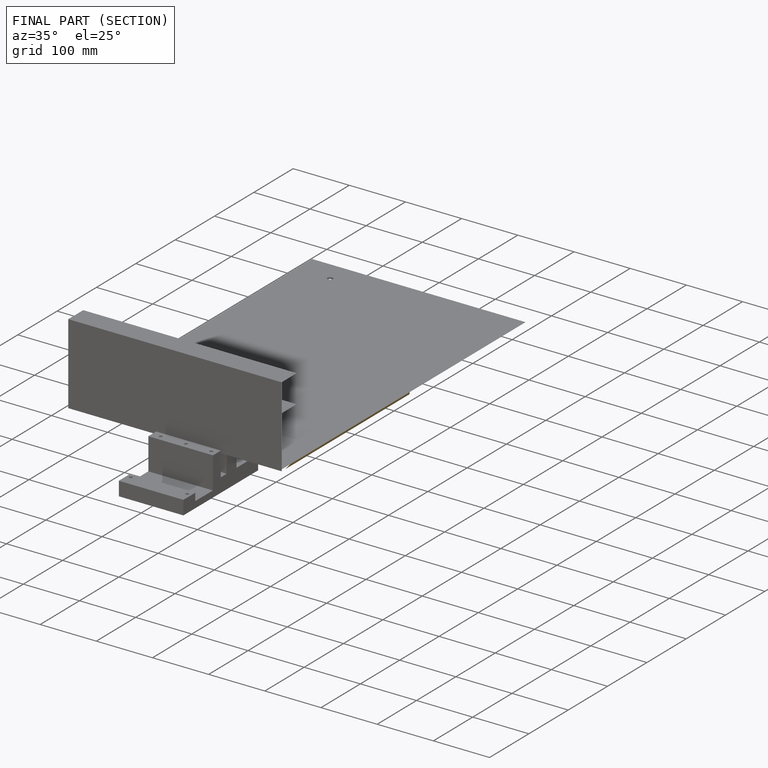
[diagram: finished part — half-section view (interior)]
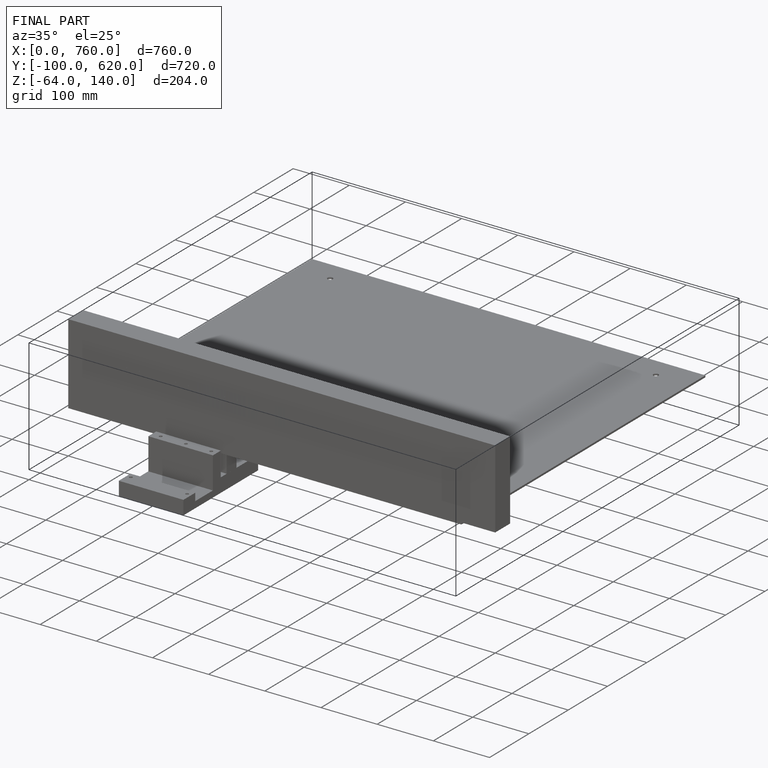
[diagram: finished part — iso view with bounding-box wireframe]
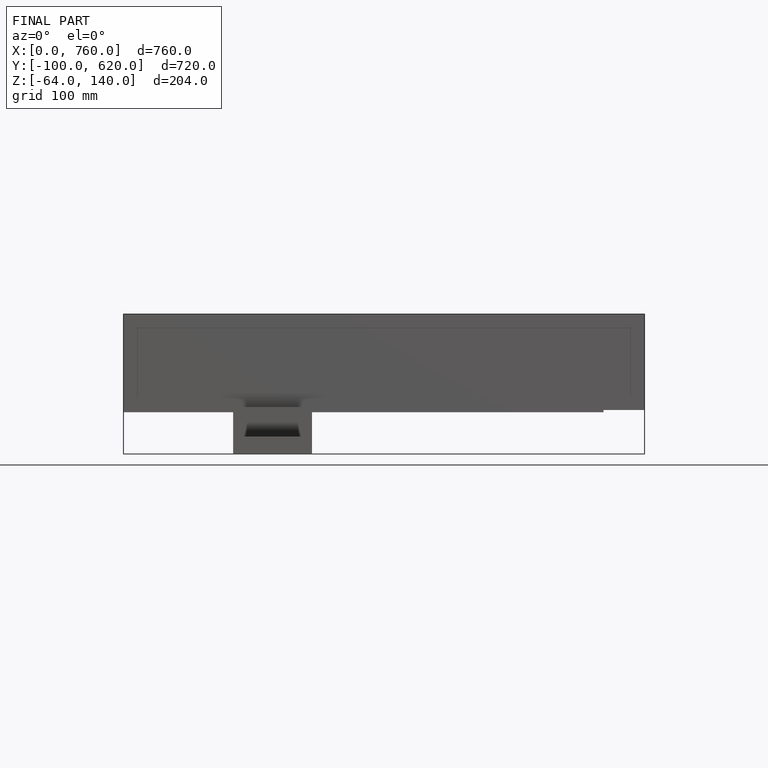
[diagram: finished part — front view with bounding-box wireframe]
